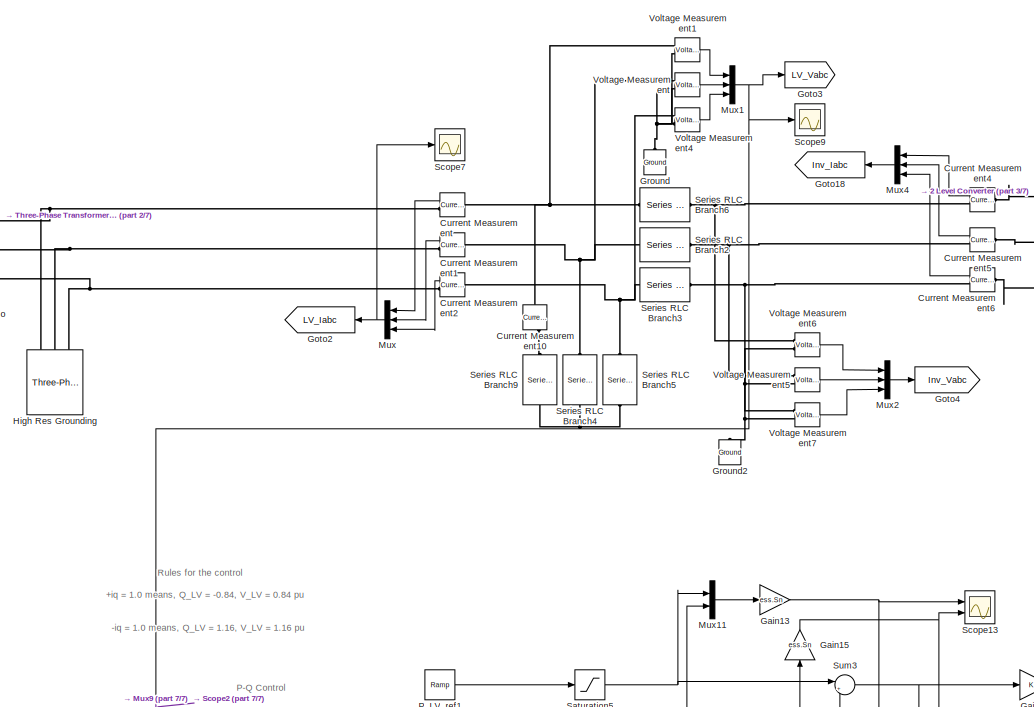
[diagram: root canvas - part 1/7, top center region]
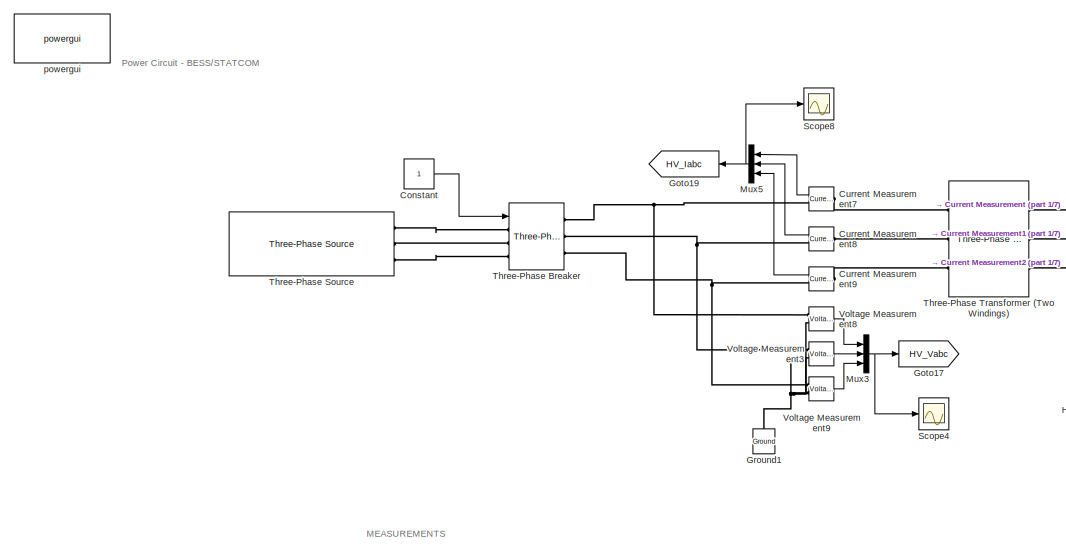
[diagram: root canvas - part 2/7, top left region]
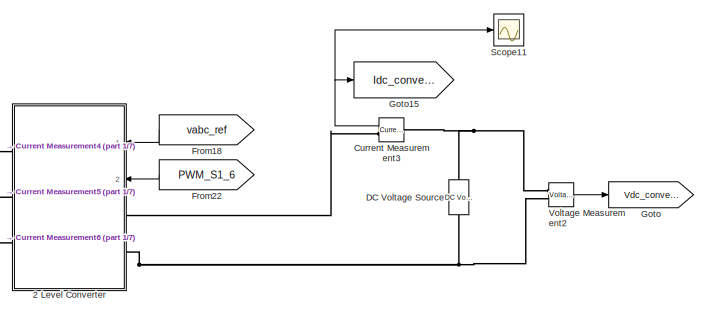
[diagram: root canvas - part 3/7, top right region]
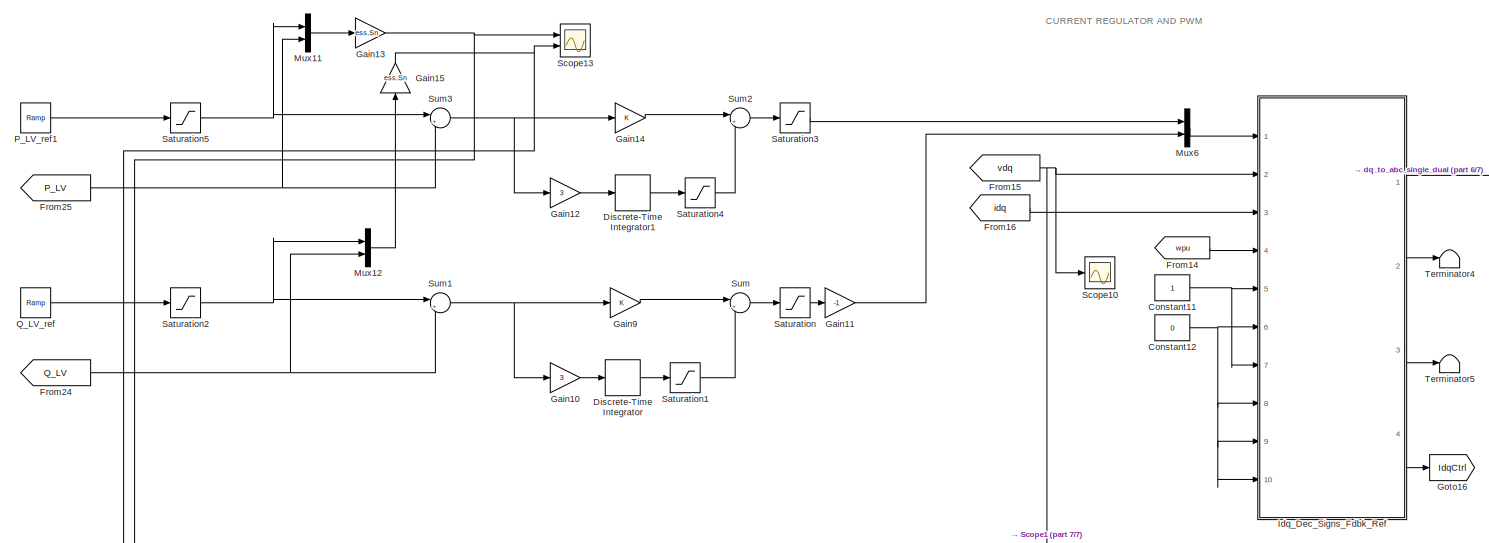
[diagram: root canvas - part 4/7, central region]
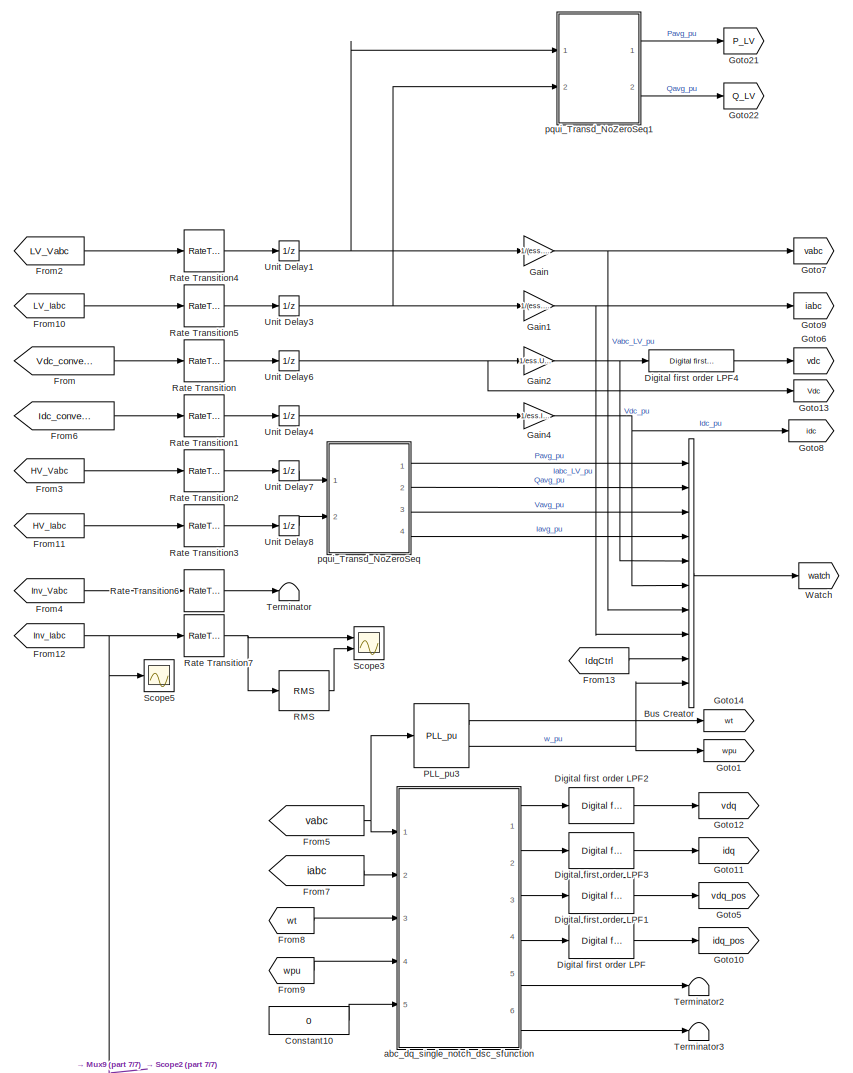
[diagram: root canvas - part 5/7, middle left region]
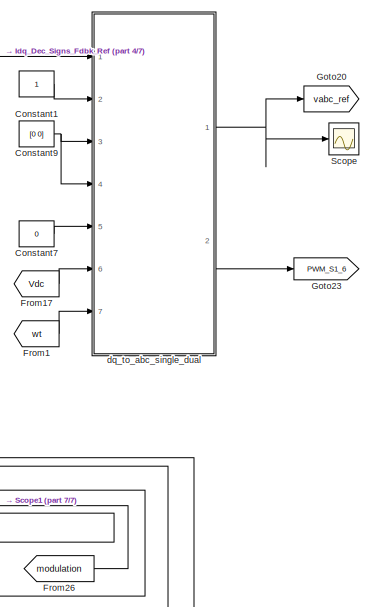
[diagram: root canvas - part 6/7, middle right region]
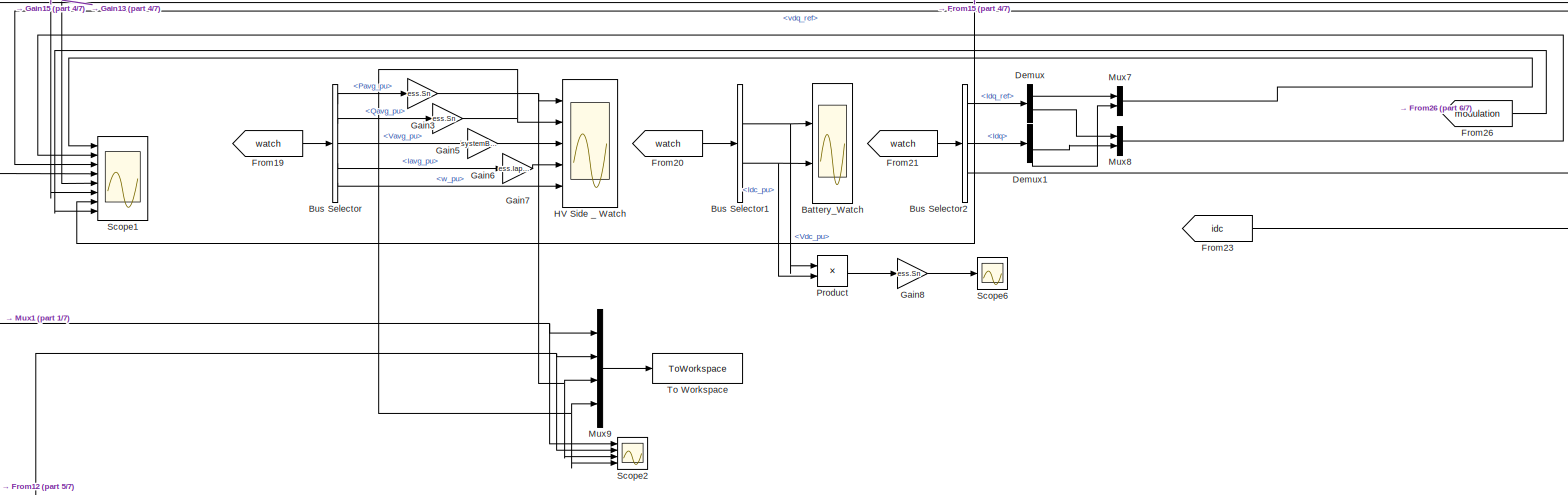
[diagram: root canvas - part 7/7, bottom right region]
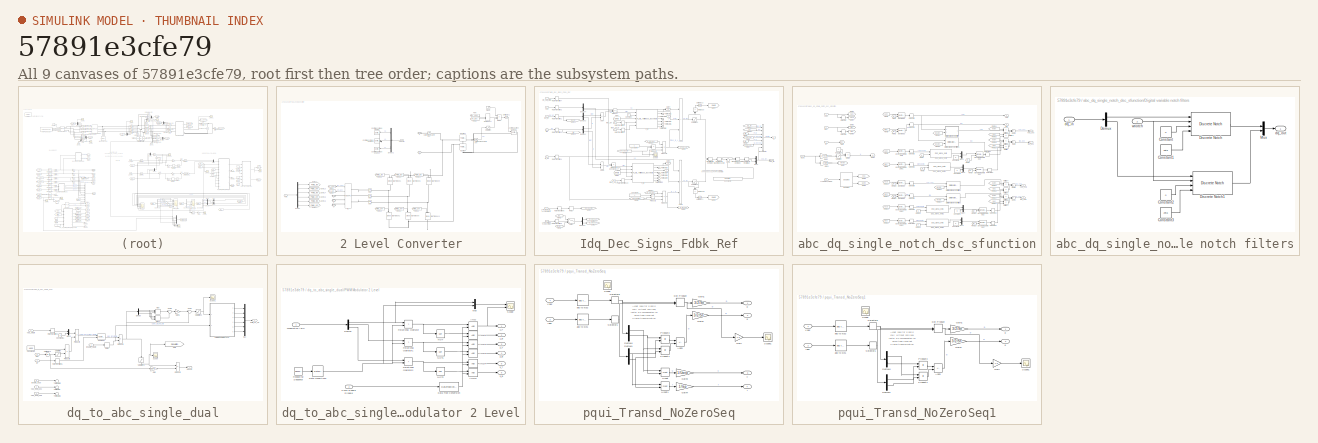
[diagram: thumbnail index - all 9 canvases of the model, root first then tree order]
MODEL slx_57891e3cfe79
KIND model
CONFIG AbsTol = auto
CONFIG EnableMultiTasking = off
CONFIG FixedStep = Tplant
CONFIG MaxStep = auto
CONFIG MinStep = auto
CONFIG RelTol = 1e-3
CONFIG SampleTimeConstraint = Unconstrained
CONFIG SolverName = FixedStepDiscrete
CONFIG StartTime = 0.0
CONFIG StopTime = 10
BLOCK [SubSystem] 2 Level Converter
  AncestorBlock = pwrsysVSrc/DCL_LSC_LCL_Trafo_NoSwitching
  Ports = [2, 0, 0, 0, 0, 2, 3]
  RequestExecContextInheritance = off
BLOCK [PMIOPort] 2 Level Converter/A
  Side = Right
BLOCK [PMIOPort] 2 Level Converter/B
  Port = 2
  Side = Right
BLOCK [PMIOPort] 2 Level Converter/C
  Port = 3
  Side = Right
BLOCK [Reference] 2 Level Converter/CM1  REF=powerlib/Measurements/Current Measurement
  Ports = [0, 1, 0, 0, 0, 1, 1]
  SourceBlock = powerlib/Measurements/Current Measurement
  SourceProductBaseCode = PS
  SourceType = Current Measurement
BLOCK [Reference] 2 Level Converter/CM2  REF=powerlib/Measurements/Current Measurement
  Ports = [0, 1, 0, 0, 0, 1, 1]
  SourceBlock = powerlib/Measurements/Current Measurement
  SourceProductBaseCode = PS
  SourceType = Current Measurement
BLOCK [Reference] 2 Level Converter/CM3  REF=powerlib/Measurements/Current Measurement
  Ports = [0, 1, 0, 0, 0, 1, 1]
  SourceBlock = powerlib/Measurements/Current Measurement
  SourceProductBaseCode = PS
  SourceType = Current Measurement
BLOCK [Reference] 2 Level Converter/Cdclink  REF=powerlib/Elements/Parallel RLC Branch
  AttributesFormatString = \n
  NameLocation = left
  Ports = [0, 0, 0, 0, 0, 1, 1]
  SourceBlock = powerlib/Elements/Parallel RLC Branch
  SourceProductBaseCode = PS
  SourceType = Parallel RLC Branch
BLOCK [Reference] 2 Level Converter/Cdclink1  REF=powerlib/Elements/Parallel RLC Branch
  AttributesFormatString = \n
  NameLocation = left
  Ports = [0, 0, 0, 0, 0, 1, 1]
  SourceBlock = powerlib/Elements/Parallel RLC Branch
  SourceProductBaseCode = PS
  SourceType = Parallel RLC Branch
BLOCK [Reference] 2 Level Converter/Controlled Current Source2  REF=powerlib/Electrical
Sources/Controlled Current Source
  Commented = on
  Ports = [1, 0, 0, 0, 0, 1, 1]
  SourceBlock = powerlib/Electrical\nSources/Controlled Current Source
  SourceProductBaseCode = PS
  SourceType = Controlled Current Source
BLOCK [Reference] 2 Level Converter/Controlled Voltage Source  REF=powerlib/Electrical
Sources/Controlled Voltage Source
  Commented = on
  Ports = [1, 0, 0, 0, 0, 1, 1]
  SourceBlock = powerlib/Electrical\nSources/Controlled Voltage Source
  SourceProductBaseCode = PS
  SourceType = Controlled Voltage Source
BLOCK [Reference] 2 Level Converter/Controlled Voltage Source1  REF=powerlib/Electrical
Sources/Controlled Voltage Source
  Commented = on
  Ports = [1, 0, 0, 0, 0, 1, 1]
  SourceBlock = powerlib/Electrical\nSources/Controlled Voltage Source
  SourceProductBaseCode = PS
  SourceType = Controlled Voltage Source
BLOCK [Reference] 2 Level Converter/Controlled Voltage Source2  REF=powerlib/Electrical
Sources/Controlled Voltage Source
  Commented = on
  Ports = [1, 0, 0, 0, 0, 1, 1]
  SourceBlock = powerlib/Electrical\nSources/Controlled Voltage Source
  SourceProductBaseCode = PS
  SourceType = Controlled Voltage Source
BLOCK [Reference] 2 Level Converter/Current Measurement  REF=powerlib/Measurements/Current Measurement
  Ports = [0, 1, 0, 0, 0, 1, 1]
  SourceBlock = powerlib/Measurements/Current Measurement
  SourceProductBaseCode = PS
  SourceType = Current Measurement
  UserDataPersistent = on
BLOCK [Demux] 2 Level Converter/Demux
  Outputs = 6
  Ports = [1, 6]
BLOCK [Demux] 2 Level Converter/Demux2
  Commented = on
  Outputs = 3
  Ports = [1, 3]
BLOCK [Product] 2 Level Converter/Divide
  Commented = on
  Inputs = **/
  Ports = [3, 1]
BLOCK [DotProduct] 2 Level Converter/Dot Product
  Commented = on
  OutDataTypeStr = Inherit: Inherit via internal rule
BLOCK [From] 2 Level Converter/From
  Commented = on
  GotoTag = INV_Vabc
BLOCK [From] 2 Level Converter/From1
  Commented = on
  GotoTag = INV_Iabc
BLOCK [From] 2 Level Converter/From18
  GotoTag = PWM1_top
BLOCK [From] 2 Level Converter/From19
  GotoTag = PWM1_bot
BLOCK [From] 2 Level Converter/From20
  GotoTag = PWM2_top
BLOCK [From] 2 Level Converter/From21
  GotoTag = PWM3_top
BLOCK [From] 2 Level Converter/From22
  GotoTag = PWM2_bot
BLOCK [From] 2 Level Converter/From23
  GotoTag = PWM3_bot
BLOCK [Goto] 2 Level Converter/Goto1
  GotoTag = INV_Vabc
BLOCK [Goto] 2 Level Converter/Goto12
  GotoTag = PWM1_top
BLOCK [Goto] 2 Level Converter/Goto13
  GotoTag = PWM1_bot
BLOCK [Goto] 2 Level Converter/Goto14
  GotoTag = PWM2_top
BLOCK [Goto] 2 Level Converter/Goto15
  GotoTag = PWM2_bot
BLOCK [Goto] 2 Level Converter/Goto16
  GotoTag = PWM3_top
BLOCK [Goto] 2 Level Converter/Goto17
  GotoTag = PWM3_bot
BLOCK [Goto] 2 Level Converter/Goto2
  GotoTag = INV_Iabc
BLOCK [Reference] 2 Level Converter/IGBT//Diode1  REF=powerlib/Power
Electronics/IGBT//Diode
  NameLocation = left
  Ports = [1, 0, 0, 0, 0, 1, 1]
  SourceBlock = powerlib/Power\nElectronics/IGBT//Diode
  SourceProductBaseCode = PS
  SourceType = IGBT/Diode
BLOCK [Reference] 2 Level Converter/IGBT//Diode10  REF=powerlib/Power
Electronics/IGBT//Diode
  NameLocation = left
  Ports = [1, 0, 0, 0, 0, 1, 1]
  SourceBlock = powerlib/Power\nElectronics/IGBT//Diode
  SourceProductBaseCode = PS
  SourceType = IGBT/Diode
BLOCK [Reference] 2 Level Converter/IGBT//Diode2  REF=powerlib/Power
Electronics/IGBT//Diode
  NameLocation = left
  Ports = [1, 0, 0, 0, 0, 1, 1]
  SourceBlock = powerlib/Power\nElectronics/IGBT//Diode
  SourceProductBaseCode = PS
  SourceType = IGBT/Diode
BLOCK [Reference] 2 Level Converter/IGBT//Diode5  REF=powerlib/Power
Electronics/IGBT//Diode
  NameLocation = left
  Ports = [1, 0, 0, 0, 0, 1, 1]
  SourceBlock = powerlib/Power\nElectronics/IGBT//Diode
  SourceProductBaseCode = PS
  SourceType = IGBT/Diode
BLOCK [Reference] 2 Level Converter/IGBT//Diode6  REF=powerlib/Power
Electronics/IGBT//Diode
  NameLocation = left
  Ports = [1, 0, 0, 0, 0, 1, 1]
  SourceBlock = powerlib/Power\nElectronics/IGBT//Diode
  SourceProductBaseCode = PS
  SourceType = IGBT/Diode
BLOCK [Reference] 2 Level Converter/IGBT//Diode9  REF=powerlib/Power
Electronics/IGBT//Diode
  NameLocation = left
  Ports = [1, 0, 0, 0, 0, 1, 1]
  SourceBlock = powerlib/Power\nElectronics/IGBT//Diode
  SourceProductBaseCode = PS
  SourceType = IGBT/Diode
BLOCK [Reference] 2 Level Converter/INV  REF=powerlib/Measurements/Three-Phase
V-I Measurement
  Ports = [0, 2, 0, 0, 0, 3, 3]
  SourceBlock = powerlib/Measurements/Three-Phase\nV-I Measurement
  SourceProductBaseCode = PS
  SourceType = Three-Phase VI Measurement
BLOCK [PMIOPort] 2 Level Converter/N
  Port = 5
  Side = Left
BLOCK [PMIOPort] 2 Level Converter/P
  Port = 4
  Side = Left
BLOCK [Inport] 2 Level Converter/PWM
  NameLocation = top
  Port = 2
BLOCK [Saturate] 2 Level Converter/Saturation
  Commented = on
  LowerLimit = 0.01*Uab*sqrt(2/3)
  UpperLimit = 10*Uab*sqrt(2/3)
BLOCK [Step] 2 Level Converter/Step6
  Commented = on
  SampleTime = Tsm
  Time = Tstart
BLOCK [UnitDelay] 2 Level Converter/Unit Delay1
  Commented = on
  HasFrameUpgradeWarning = on
  SampleTime = Tsm
BLOCK [Inport] 2 Level Converter/Vabcref
BLOCK [Reference] 2 Level Converter/Voltage Measurement  REF=powerlib/Measurements/Voltage Measurement
  Commented = on
  Ports = [0, 1, 0, 0, 0, 2]
  SourceBlock = powerlib/Measurements/Voltage Measurement
  SourceProductBaseCode = PS
  SourceType = Voltage Measurement
  UserDataPersistent = on
BLOCK [Scope] Battery_Watch
  Floating = off
  NumInputPorts = 2
  Ports = [2]
  ScopeSpecificationString = Simulink.scopes.TimeScopeBlockCfg('CurrentConfiguration', extmgr.ConfigurationSet(extmgr.Configuration('Core','General UI',true),extmgr.Configuration('Core','Source UI',true),extmgr.Configuration('Sources','WiredSimulink',true,'DataLoggingVariableName','ScopeData2'),extmgr.Configuration('Visuals','Time Domain',true,'SerializedDisplays',{struct('MinYLimReal','-0.12398','MaxYLimReal','1.12489','YLab...<+2030ch>
BLOCK [BusCreator] Bus Creator
  DisplayOption = bar
  InheritFromInputs = on
  Inputs = 10
  Ports = [10, 1]
BLOCK [BusSelector] Bus Selector
  OutputSignals = Pavg_pu,Qavg_pu,Vavg_pu,Iavg_pu,w_pu
  Ports = [1, 5]
BLOCK [BusSelector] Bus Selector1
  OutputSignals = Vdc_pu,Idc_pu
  Ports = [1, 2]
BLOCK [BusSelector] Bus Selector2
  OutputSignals = IdqCtrl.Idq_ref,IdqCtrl.Idq,IdqCtrl.vdq_ref
  Ports = [1, 3]
BLOCK [Constant] Constant
BLOCK [Constant] Constant1
  SampleTime = ess.Ts_control
BLOCK [Constant] Constant10
  SampleTime = ess.Ts_control
  Value = 0
BLOCK [Constant] Constant11
  SampleTime = ess.Ts_control
BLOCK [Constant] Constant12
  SampleTime = ess.Ts_control
  Value = 0
BLOCK [Constant] Constant7
  SampleTime = ess.Ts_control
  Value = 0
BLOCK [Constant] Constant9
  SampleTime = ess.Ts_control
  Value = [0 0]
BLOCK [Reference] Current Measurement  REF=powerlib/Measurements/Current Measurement
  NameLocation = top
  Ports = [0, 1, 0, 0, 0, 1, 1]
  SourceBlock = powerlib/Measurements/Current Measurement
  SourceProductBaseCode = PS
  SourceType = Current Measurement
  UserDataPersistent = on
BLOCK [Reference] Current Measurement1  REF=powerlib/Measurements/Current Measurement
  NameLocation = top
  Ports = [0, 1, 0, 0, 0, 1, 1]
  SourceBlock = powerlib/Measurements/Current Measurement
  SourceProductBaseCode = PS
  SourceType = Current Measurement
  UserDataPersistent = on
BLOCK [Reference] Current Measurement10  REF=powerlib/Measurements/Current Measurement
  NameLocation = left
  Ports = [0, 1, 0, 0, 0, 1, 1]
  SourceBlock = powerlib/Measurements/Current Measurement
  SourceProductBaseCode = PS
  SourceType = Current Measurement
  UserDataPersistent = on
BLOCK [Reference] Current Measurement2  REF=powerlib/Measurements/Current Measurement
  NameLocation = top
  Ports = [0, 1, 0, 0, 0, 1, 1]
  SourceBlock = powerlib/Measurements/Current Measurement
  SourceProductBaseCode = PS
  SourceType = Current Measurement
  UserDataPersistent = on
BLOCK [Reference] Current Measurement3  REF=powerlib/Measurements/Current Measurement
  NameLocation = top
  Ports = [0, 1, 0, 0, 0, 1, 1]
  SourceBlock = powerlib/Measurements/Current Measurement
  SourceProductBaseCode = PS
  SourceType = Current Measurement
  UserDataPersistent = on
BLOCK [Reference] Current Measurement4  REF=powerlib/Measurements/Current Measurement
  NameLocation = top
  Ports = [0, 1, 0, 0, 0, 1, 1]
  SourceBlock = powerlib/Measurements/Current Measurement
  SourceProductBaseCode = PS
  SourceType = Current Measurement
  UserDataPersistent = on
BLOCK [Reference] Current Measurement5  REF=powerlib/Measurements/Current Measurement
  NameLocation = top
  Ports = [0, 1, 0, 0, 0, 1, 1]
  SourceBlock = powerlib/Measurements/Current Measurement
  SourceProductBaseCode = PS
  SourceType = Current Measurement
  UserDataPersistent = on
BLOCK [Reference] Current Measurement6  REF=powerlib/Measurements/Current Measurement
  NameLocation = top
  Ports = [0, 1, 0, 0, 0, 1, 1]
  SourceBlock = powerlib/Measurements/Current Measurement
  SourceProductBaseCode = PS
  SourceType = Current Measurement
  UserDataPersistent = on
BLOCK [Reference] Current Measurement7  REF=powerlib/Measurements/Current Measurement
  NameLocation = top
  Ports = [0, 1, 0, 0, 0, 1, 1]
  SourceBlock = powerlib/Measurements/Current Measurement
  SourceProductBaseCode = PS
  SourceType = Current Measurement
  UserDataPersistent = on
BLOCK [Reference] Current Measurement8  REF=powerlib/Measurements/Current Measurement
  NameLocation = top
  Ports = [0, 1, 0, 0, 0, 1, 1]
  SourceBlock = powerlib/Measurements/Current Measurement
  SourceProductBaseCode = PS
  SourceType = Current Measurement
  UserDataPersistent = on
BLOCK [Reference] Current Measurement9  REF=powerlib/Measurements/Current Measurement
  NameLocation = top
  Ports = [0, 1, 0, 0, 0, 1, 1]
  SourceBlock = powerlib/Measurements/Current Measurement
  SourceProductBaseCode = PS
  SourceType = Current Measurement
  UserDataPersistent = on
BLOCK [Reference] DC Voltage Source  REF=powerlib/Electrical
Sources/DC Voltage Source
  NameLocation = right
  Ports = [0, 0, 0, 0, 0, 1, 1]
  SourceBlock = powerlib/Electrical\nSources/DC Voltage Source
  SourceProductBaseCode = PS
  SourceType = DC Voltage Source
BLOCK [Demux] Demux
  Outputs = 2
  Ports = [1, 2]
BLOCK [Demux] Demux1
  Outputs = 2
  Ports = [1, 2]
BLOCK [Reference] Digital first order LPF  REF=pwrsysBasic/Digital first order LPF
  Ports = [1, 1]
  SourceBlock = pwrsysBasic/Digital first order LPF
  SourceProductName = NTNU Power Systems
  SourceType = Digital first-order low-pass filter
BLOCK [Reference] Digital first order LPF1  REF=pwrsysBasic/Digital first order LPF
  Ports = [1, 1]
  SourceBlock = pwrsysBasic/Digital first order LPF
  SourceProductName = NTNU Power Systems
  SourceType = Digital first-order low-pass filter
BLOCK [Reference] Digital first order LPF2  REF=pwrsysBasic/Digital first order LPF
  Ports = [1, 1]
  SourceBlock = pwrsysBasic/Digital first order LPF
  SourceProductName = NTNU Power Systems
  SourceType = Digital first-order low-pass filter
BLOCK [Reference] Digital first order LPF3  REF=pwrsysBasic/Digital first order LPF
  Ports = [1, 1]
  SourceBlock = pwrsysBasic/Digital first order LPF
  SourceProductName = NTNU Power Systems
  SourceType = Digital first-order low-pass filter
BLOCK [Reference] Digital first order LPF4  REF=pwrsysBasic/Digital first order LPF
  Ports = [1, 1]
  SourceBlock = pwrsysBasic/Digital first order LPF
  SourceProductName = NTNU Power Systems
  SourceType = Digital first-order low-pass filter
BLOCK [DiscreteIntegrator] Discrete-Time Integrator
  ICPrevOutput = DiscIntNeverNeededParam
  ICPrevScaledInput = DiscIntNeverNeededParam
  InitialConditionSetting = Auto
  Ports = [1, 1]
  SampleTime = -1
BLOCK [DiscreteIntegrator] Discrete-Time Integrator1
  ICPrevOutput = DiscIntNeverNeededParam
  ICPrevScaledInput = DiscIntNeverNeededParam
  InitialConditionSetting = Auto
  Ports = [1, 1]
  SampleTime = -1
BLOCK [From] From
  GotoTag = Vdc_converter
BLOCK [From] From1
  GotoTag = wt
BLOCK [From] From10
  GotoTag = LV_Iabc
BLOCK [From] From11
  GotoTag = HV_Iabc
BLOCK [From] From12
  GotoTag = Inv_Iabc
BLOCK [From] From13
  GotoTag = IdqCtrl
BLOCK [From] From14
  GotoTag = wpu
BLOCK [From] From15
  GotoTag = vdq
BLOCK [From] From16
  GotoTag = idq
BLOCK [From] From17
  GotoTag = Vdc
BLOCK [From] From18
  GotoTag = vabc_ref
  NameLocation = top
BLOCK [From] From19
  GotoTag = watch
BLOCK [From] From2
  GotoTag = LV_Vabc
BLOCK [From] From20
  GotoTag = watch
BLOCK [From] From21
  GotoTag = watch
BLOCK [From] From22
  GotoTag = PWM_S1_6
  NameLocation = top
BLOCK [From] From23
  GotoTag = idc
BLOCK [From] From24
  GotoTag = Q_LV
BLOCK [From] From25
  GotoTag = P_LV
BLOCK [From] From26
  GotoTag = modulation
  TagVisibility = global
BLOCK [From] From3
  GotoTag = HV_Vabc
BLOCK [From] From4
  GotoTag = Inv_Vabc
BLOCK [From] From5
  GotoTag = vabc
BLOCK [From] From6
  GotoTag = Idc_converter
BLOCK [From] From7
  GotoTag = iabc
BLOCK [From] From8
  GotoTag = wt
BLOCK [From] From9
  GotoTag = wpu
BLOCK [Gain] Gain
  Gain = 1/(ess.Uanp)
BLOCK [Gain] Gain1
  Gain = 1/(ess.Iap)
BLOCK [Gain] Gain10
  Gain = 3
BLOCK [Gain] Gain11
  Gain = -1
BLOCK [Gain] Gain12
  Gain = 3
BLOCK [Gain] Gain13
  Gain = ess.Sn
BLOCK [Gain] Gain14
BLOCK [Gain] Gain15
  Gain = ess.Sn
  NameLocation = right
BLOCK [Gain] Gain2
  Gain = 1/ess.Udc
BLOCK [Gain] Gain3
  Gain = ess.Sn
BLOCK [Gain] Gain4
  Gain = 1/ess.Idc
BLOCK [Gain] Gain5
  Gain = ess.Sn
BLOCK [Gain] Gain6
  Gain = systemBase.Vn*(2/3)^0.5
BLOCK [Gain] Gain7
  Gain = ess.Iap*(ess.Un/systemBase.Vn)
BLOCK [Gain] Gain8
  Gain = ess.Sn
BLOCK [Gain] Gain9
BLOCK [Goto] Goto
  GotoTag = Vdc_converter
BLOCK [Goto] Goto1
  GotoTag = wpu
BLOCK [Goto] Goto10
  GotoTag = idq_pos
BLOCK [Goto] Goto11
  GotoTag = idq
BLOCK [Goto] Goto12
  GotoTag = vdq
BLOCK [Goto] Goto13
  GotoTag = Vdc
BLOCK [Goto] Goto14
  GotoTag = wt
BLOCK [Goto] Goto15
  GotoTag = Idc_converter
BLOCK [Goto] Goto16
  GotoTag = IdqCtrl
BLOCK [Goto] Goto17
  GotoTag = HV_Vabc
BLOCK [Goto] Goto18
  GotoTag = Inv_Iabc
  NameLocation = top
BLOCK [Goto] Goto19
  GotoTag = HV_Iabc
  NameLocation = top
BLOCK [Goto] Goto2
  GotoTag = LV_Iabc
  NameLocation = top
BLOCK [Goto] Goto20
  GotoTag = vabc_ref
BLOCK [Goto] Goto21
  GotoTag = P_LV
BLOCK [Goto] Goto22
  GotoTag = Q_LV
BLOCK [Goto] Goto23
  GotoTag = PWM_S1_6
BLOCK [Goto] Goto3
  GotoTag = LV_Vabc
BLOCK [Goto] Goto4
  GotoTag = Inv_Vabc
BLOCK [Goto] Goto5
  GotoTag = vdq_pos
BLOCK [Goto] Goto6
  GotoTag = vdc
BLOCK [Goto] Goto7
  GotoTag = vabc
BLOCK [Goto] Goto8
  GotoTag = idc
BLOCK [Goto] Goto9
  GotoTag = iabc
BLOCK [Reference] Ground  REF=powerlib/Elements/Ground
  NameLocation = right
  Ports = [0, 0, 0, 0, 0, 1]
  SourceBlock = powerlib/Elements/Ground
  SourceProductBaseCode = PS
  SourceType = Ground
BLOCK [Reference] Ground1  REF=powerlib/Elements/Ground
  NameLocation = right
  Ports = [0, 0, 0, 0, 0, 1]
  SourceBlock = powerlib/Elements/Ground
  SourceProductBaseCode = PS
  SourceType = Ground
BLOCK [Reference] Ground2  REF=powerlib/Elements/Ground
  NameLocation = right
  Ports = [0, 0, 0, 0, 0, 1]
  SourceBlock = powerlib/Elements/Ground
  SourceProductBaseCode = PS
  SourceType = Ground
BLOCK [Scope] HV Side _ Watch
  Floating = off
  NumInputPorts = 5
  Ports = [5]
  ScopeSpecificationString = Simulink.scopes.TimeScopeBlockCfg('CurrentConfiguration', extmgr.ConfigurationSet(extmgr.Configuration('Core','General UI',true),extmgr.Configuration('Core','Source UI',true),extmgr.Configuration('Sources','WiredSimulink',true,'DataLoggingVariableName','ScopeData1'),extmgr.Configuration('Visuals','Time Domain',true,'SerializedDisplays',{struct('MinYLimReal','-5660352.19508','MaxYLimReal','6022084....<+4822ch>
BLOCK [Reference] High Res Grounding  REF=powerlib/Elements/Three-Phase
Parallel RLC Load
  AttributesFormatString = \n
  NameLocation = right
  Ports = [0, 0, 0, 0, 0, 3]
  SourceBlock = powerlib/Elements/Three-Phase\nParallel RLC Load
  SourceProductBaseCode = PS
  SourceType = Three-Phase Parallel RLC Load
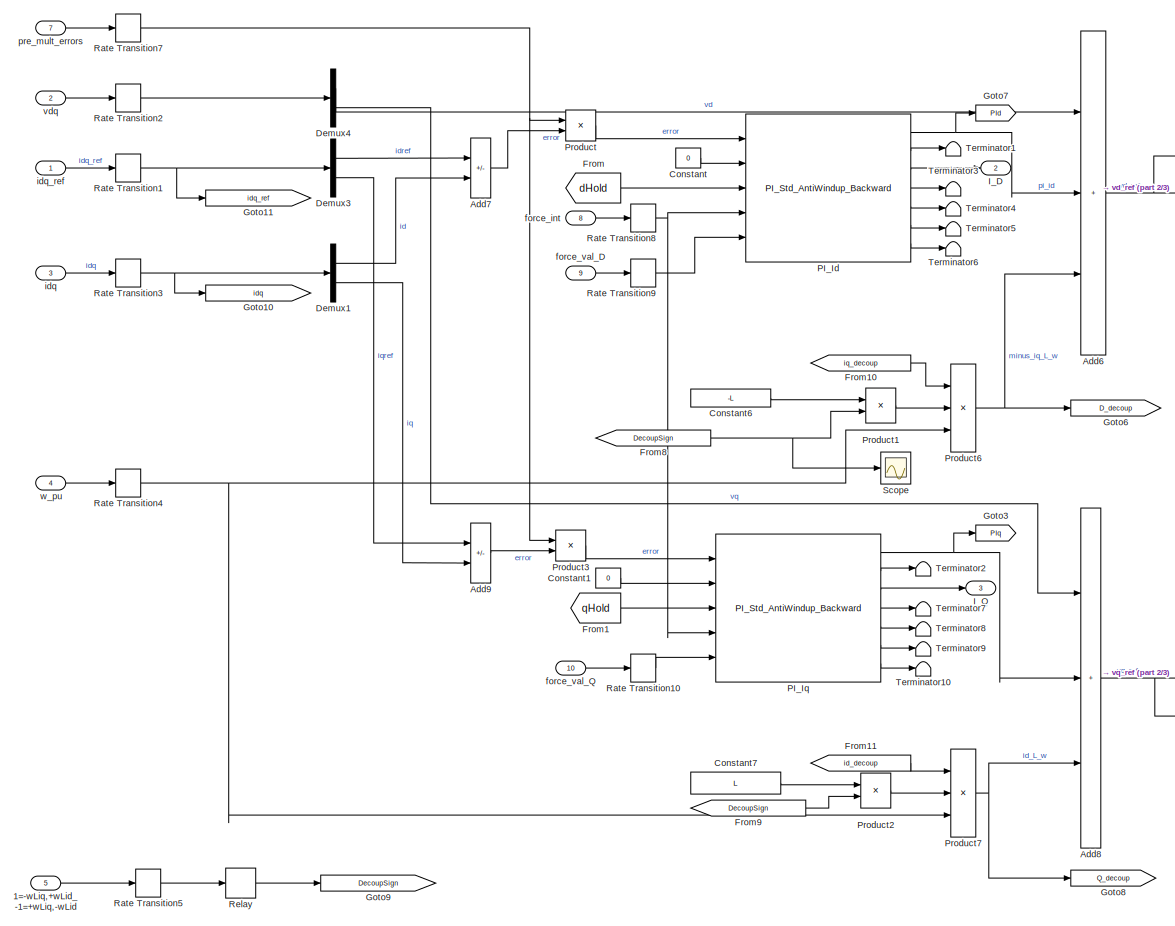
[diagram: Idq_Dec_Signs_Fdbk_Ref - part 1/3, left side, full height]
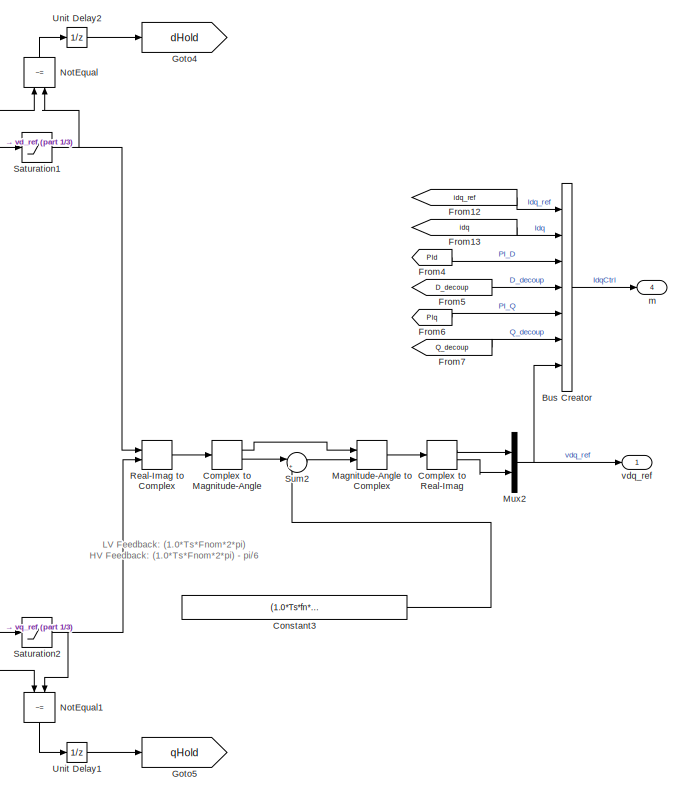
[diagram: Idq_Dec_Signs_Fdbk_Ref - part 2/3, right side, full height]
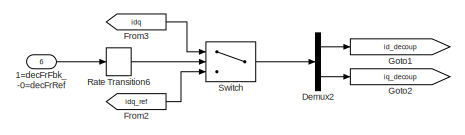
[diagram: Idq_Dec_Signs_Fdbk_Ref - part 3/3, bottom left region]
BLOCK [SubSystem] Idq_Dec_Signs_Fdbk_Ref
  AncestorBlock = pwrsysVICtrl/Idq_Dec_Signs_Fdbk_Ref
  Ports = [10, 4]
  RequestExecContextInheritance = off
BLOCK [Inport] Idq_Dec_Signs_Fdbk_Ref/1=-wLiq,+wLid_-1=+wLiq,-wLid
  Port = 5
BLOCK [Inport] Idq_Dec_Signs_Fdbk_Ref/1=decFrFbk_-0=decFrRef
  Port = 6
BLOCK [Sum] Idq_Dec_Signs_Fdbk_Ref/Add6
  IconShape = rectangular
  Inputs = +++
  Ports = [3, 1]
BLOCK [Sum] Idq_Dec_Signs_Fdbk_Ref/Add7
  IconShape = rectangular
  Inputs = +-
  Ports = [2, 1]
BLOCK [Sum] Idq_Dec_Signs_Fdbk_Ref/Add8
  IconShape = rectangular
  Inputs = +++
  Ports = [3, 1]
BLOCK [Sum] Idq_Dec_Signs_Fdbk_Ref/Add9
  IconShape = rectangular
  Inputs = +-
  Ports = [2, 1]
BLOCK [BusCreator] Idq_Dec_Signs_Fdbk_Ref/Bus Creator
  DisplayOption = bar
  InheritFromInputs = on
  Inputs = 7
  Ports = [7, 1]
BLOCK [ComplexToMagnitudeAngle] Idq_Dec_Signs_Fdbk_Ref/Complex to Magnitude-Angle
  Ports = [1, 2]
BLOCK [ComplexToRealImag] Idq_Dec_Signs_Fdbk_Ref/Complex to Real-Imag
  Ports = [1, 2]
BLOCK [Constant] Idq_Dec_Signs_Fdbk_Ref/Constant
  SampleTime = Ts
  Value = 0
BLOCK [Constant] Idq_Dec_Signs_Fdbk_Ref/Constant1
  SampleTime = Ts
  Value = 0
BLOCK [Constant] Idq_Dec_Signs_Fdbk_Ref/Constant3
  SampleTime = Ts
  Value = (1.0*Ts*fn*2*pi+TrafoPhaseComp)
BLOCK [Constant] Idq_Dec_Signs_Fdbk_Ref/Constant6
  SampleTime = Ts
  Value = -L
BLOCK [Constant] Idq_Dec_Signs_Fdbk_Ref/Constant7
  SampleTime = Ts
  Value = L
BLOCK [Demux] Idq_Dec_Signs_Fdbk_Ref/Demux1
  Outputs = 2
  Ports = [1, 2]
BLOCK [Demux] Idq_Dec_Signs_Fdbk_Ref/Demux2
  Outputs = 2
  Ports = [1, 2]
BLOCK [Demux] Idq_Dec_Signs_Fdbk_Ref/Demux3
  Outputs = 2
  Ports = [1, 2]
BLOCK [Demux] Idq_Dec_Signs_Fdbk_Ref/Demux4
  Outputs = 2
  Ports = [1, 2]
BLOCK [From] Idq_Dec_Signs_Fdbk_Ref/From
  GotoTag = dHold
BLOCK [From] Idq_Dec_Signs_Fdbk_Ref/From1
  GotoTag = qHold
BLOCK [From] Idq_Dec_Signs_Fdbk_Ref/From10
  GotoTag = iq_decoup
BLOCK [From] Idq_Dec_Signs_Fdbk_Ref/From11
  GotoTag = id_decoup
BLOCK [From] Idq_Dec_Signs_Fdbk_Ref/From12
  GotoTag = idq_ref
BLOCK [From] Idq_Dec_Signs_Fdbk_Ref/From13
  GotoTag = idq
BLOCK [From] Idq_Dec_Signs_Fdbk_Ref/From2
  GotoTag = idq_ref
BLOCK [From] Idq_Dec_Signs_Fdbk_Ref/From3
  GotoTag = idq
BLOCK [From] Idq_Dec_Signs_Fdbk_Ref/From4
  GotoTag = PId
BLOCK [From] Idq_Dec_Signs_Fdbk_Ref/From5
  GotoTag = D_decoup
BLOCK [From] Idq_Dec_Signs_Fdbk_Ref/From6
  GotoTag = PIq
BLOCK [From] Idq_Dec_Signs_Fdbk_Ref/From7
  GotoTag = Q_decoup
BLOCK [From] Idq_Dec_Signs_Fdbk_Ref/From8
  GotoTag = DecoupSign
BLOCK [From] Idq_Dec_Signs_Fdbk_Ref/From9
  GotoTag = DecoupSign
BLOCK [Goto] Idq_Dec_Signs_Fdbk_Ref/Goto1
  GotoTag = id_decoup
BLOCK [Goto] Idq_Dec_Signs_Fdbk_Ref/Goto10
  GotoTag = idq
BLOCK [Goto] Idq_Dec_Signs_Fdbk_Ref/Goto11
  GotoTag = idq_ref
  NameLocation = top
BLOCK [Goto] Idq_Dec_Signs_Fdbk_Ref/Goto2
  GotoTag = iq_decoup
BLOCK [Goto] Idq_Dec_Signs_Fdbk_Ref/Goto3
  GotoTag = PIq
BLOCK [Goto] Idq_Dec_Signs_Fdbk_Ref/Goto4
  GotoTag = dHold
BLOCK [Goto] Idq_Dec_Signs_Fdbk_Ref/Goto5
  GotoTag = qHold
BLOCK [Goto] Idq_Dec_Signs_Fdbk_Ref/Goto6
  GotoTag = D_decoup
BLOCK [Goto] Idq_Dec_Signs_Fdbk_Ref/Goto7
  GotoTag = PId
BLOCK [Goto] Idq_Dec_Signs_Fdbk_Ref/Goto8
  GotoTag = Q_decoup
BLOCK [Goto] Idq_Dec_Signs_Fdbk_Ref/Goto9
  GotoTag = DecoupSign
BLOCK [Outport] Idq_Dec_Signs_Fdbk_Ref/I_D
  Port = 2
BLOCK [Outport] Idq_Dec_Signs_Fdbk_Ref/I_Q
  Port = 3
BLOCK [MagnitudeAngleToComplex] Idq_Dec_Signs_Fdbk_Ref/Magnitude-Angle to Complex
  Ports = [2, 1]
BLOCK [Mux] Idq_Dec_Signs_Fdbk_Ref/Mux2
  DisplayOption = bar
  Inputs = 2
  Ports = [2, 1]
BLOCK [RelationalOperator] Idq_Dec_Signs_Fdbk_Ref/NotEqual
  InputSameDT = off
  NameLocation = right
  Operator = ~=
  OutDataTypeStr = boolean
  Ports = [2, 1]
BLOCK [RelationalOperator] Idq_Dec_Signs_Fdbk_Ref/NotEqual1
  InputSameDT = off
  NameLocation = left
  Operator = ~=
  OutDataTypeStr = boolean
  Ports = [2, 1]
BLOCK [Reference] Idq_Dec_Signs_Fdbk_Ref/PI_Id  REF=pwrsysBasic/PI_Std_AntiWindup_Backward
  Ports = [5, 7]
  SourceBlock = pwrsysBasic/PI_Std_AntiWindup_Backward
  SourceProductName = NTNU Power Systems
  SourceType = PI regulator with anti-windup
BLOCK [Reference] Idq_Dec_Signs_Fdbk_Ref/PI_Iq  REF=pwrsysBasic/PI_Std_AntiWindup_Backward
  Ports = [5, 7]
  SourceBlock = pwrsysBasic/PI_Std_AntiWindup_Backward
  SourceProductName = NTNU Power Systems
  SourceType = PI regulator with anti-windup
BLOCK [Product] Idq_Dec_Signs_Fdbk_Ref/Product
  Ports = [2, 1]
BLOCK [Product] Idq_Dec_Signs_Fdbk_Ref/Product1
  Ports = [2, 1]
  RndMeth = Zero
BLOCK [Product] Idq_Dec_Signs_Fdbk_Ref/Product2
  Ports = [2, 1]
  RndMeth = Zero
BLOCK [Product] Idq_Dec_Signs_Fdbk_Ref/Product3
  Ports = [2, 1]
BLOCK [Product] Idq_Dec_Signs_Fdbk_Ref/Product6
  Inputs = 3
  Ports = [3, 1]
  RndMeth = Zero
BLOCK [Product] Idq_Dec_Signs_Fdbk_Ref/Product7
  Inputs = 3
  Ports = [3, 1]
  RndMeth = Zero
BLOCK [RateTransition] Idq_Dec_Signs_Fdbk_Ref/Rate Transition1
  InitialCondition = [0 0]
  OutPortSampleTime = Ts
BLOCK [RateTransition] Idq_Dec_Signs_Fdbk_Ref/Rate Transition10
  OutPortSampleTime = Ts
BLOCK [RateTransition] Idq_Dec_Signs_Fdbk_Ref/Rate Transition2
  InitialCondition = [0 0]
  OutPortSampleTime = Ts
BLOCK [RateTransition] Idq_Dec_Signs_Fdbk_Ref/Rate Transition3
  InitialCondition = [0 0]
  OutPortSampleTime = Ts
BLOCK [RateTransition] Idq_Dec_Signs_Fdbk_Ref/Rate Transition4
  InitialCondition = 1
  OutPortSampleTime = Ts
BLOCK [RateTransition] Idq_Dec_Signs_Fdbk_Ref/Rate Transition5
  InitialCondition = 1
  OutPortSampleTime = Ts
BLOCK [RateTransition] Idq_Dec_Signs_Fdbk_Ref/Rate Transition6
  OutPortSampleTime = Ts
BLOCK [RateTransition] Idq_Dec_Signs_Fdbk_Ref/Rate Transition7
  OutPortSampleTime = Ts
BLOCK [RateTransition] Idq_Dec_Signs_Fdbk_Ref/Rate Transition8
  OutPortSampleTime = Ts
BLOCK [RateTransition] Idq_Dec_Signs_Fdbk_Ref/Rate Transition9
  OutPortSampleTime = Ts
BLOCK [RealImagToComplex] Idq_Dec_Signs_Fdbk_Ref/Real-Imag to Complex
  Ports = [2, 1]
BLOCK [Relay] Idq_Dec_Signs_Fdbk_Ref/Relay
  OffOutputValue = -1
  OffSwitchValue = -0.1
  OnSwitchValue = 0
BLOCK [Saturate] Idq_Dec_Signs_Fdbk_Ref/Saturation1
  LowerLimit = PI_min
  UpperLimit = PI_max
BLOCK [Saturate] Idq_Dec_Signs_Fdbk_Ref/Saturation2
  LowerLimit = PI_min
  UpperLimit = PI_max
BLOCK [Scope] Idq_Dec_Signs_Fdbk_Ref/Scope
  Floating = off
  NumInputPorts = 1
  Ports = [1]
  ScopeSpecificationString = Simulink.scopes.TimeScopeBlockCfg('CurrentConfiguration', extmgr.ConfigurationSet(extmgr.Configuration('Core','General UI',true),extmgr.Configuration('Core','Source UI',true),extmgr.Configuration('Sources','WiredSimulink',true,'DataLoggingVariableName','ScopeData1'),extmgr.Configuration('Visuals','Time Domain',true,'SerializedDisplays',{struct('MinYLimReal','0.98443','MaxYLimReal','1.00683','YLabe...<+1381ch>
BLOCK [Sum] Idq_Dec_Signs_Fdbk_Ref/Sum2
  Inputs = |++
  Ports = [2, 1]
BLOCK [Switch] Idq_Dec_Signs_Fdbk_Ref/Switch
  Criteria = u2 > Threshold
  InputSameDT = off
  SaturateOnIntegerOverflow = off
  Threshold = 0.5
BLOCK [Terminator] Idq_Dec_Signs_Fdbk_Ref/Terminator1
BLOCK [Terminator] Idq_Dec_Signs_Fdbk_Ref/Terminator10
BLOCK [Terminator] Idq_Dec_Signs_Fdbk_Ref/Terminator2
BLOCK [Terminator] Idq_Dec_Signs_Fdbk_Ref/Terminator3
BLOCK [Terminator] Idq_Dec_Signs_Fdbk_Ref/Terminator4
BLOCK [Terminator] Idq_Dec_Signs_Fdbk_Ref/Terminator5
BLOCK [Terminator] Idq_Dec_Signs_Fdbk_Ref/Terminator6
BLOCK [Terminator] Idq_Dec_Signs_Fdbk_Ref/Terminator7
BLOCK [Terminator] Idq_Dec_Signs_Fdbk_Ref/Terminator8
BLOCK [Terminator] Idq_Dec_Signs_Fdbk_Ref/Terminator9
BLOCK [UnitDelay] Idq_Dec_Signs_Fdbk_Ref/Unit Delay1
  HasFrameUpgradeWarning = on
  SampleTime = Ts
BLOCK [UnitDelay] Idq_Dec_Signs_Fdbk_Ref/Unit Delay2
  HasFrameUpgradeWarning = on
  SampleTime = Ts
BLOCK [Inport] Idq_Dec_Signs_Fdbk_Ref/force_int
  Port = 8
BLOCK [Inport] Idq_Dec_Signs_Fdbk_Ref/force_val_D
  Port = 9
BLOCK [Inport] Idq_Dec_Signs_Fdbk_Ref/force_val_Q
  Port = 10
BLOCK [Inport] Idq_Dec_Signs_Fdbk_Ref/idq
  Port = 3
BLOCK [Inport] Idq_Dec_Signs_Fdbk_Ref/idq_ref
BLOCK [Outport] Idq_Dec_Signs_Fdbk_Ref/m
  Port = 4
BLOCK [Inport] Idq_Dec_Signs_Fdbk_Ref/pre_mult_errors
  Port = 7
BLOCK [Inport] Idq_Dec_Signs_Fdbk_Ref/vdq
  Port = 2
BLOCK [Outport] Idq_Dec_Signs_Fdbk_Ref/vdq_ref
BLOCK [Inport] Idq_Dec_Signs_Fdbk_Ref/w_pu
  Port = 4
BLOCK [Mux] Mux
  DisplayOption = bar
  Inputs = 3
  NameLocation = top
  Ports = [3, 1]
BLOCK [Mux] Mux1
  DisplayOption = bar
  Inputs = 3
  Ports = [3, 1]
BLOCK [Mux] Mux11
  DisplayOption = bar
  Inputs = 2
  Ports = [2, 1]
BLOCK [Mux] Mux12
  DisplayOption = bar
  Inputs = 2
  Ports = [2, 1]
BLOCK [Mux] Mux2
  DisplayOption = bar
  Inputs = 3
  Ports = [3, 1]
BLOCK [Mux] Mux3
  DisplayOption = bar
  Inputs = 3
  Ports = [3, 1]
BLOCK [Mux] Mux4
  DisplayOption = bar
  Inputs = 3
  NameLocation = top
  Ports = [3, 1]
BLOCK [Mux] Mux5
  DisplayOption = bar
  Inputs = 3
  NameLocation = top
  Ports = [3, 1]
BLOCK [Mux] Mux6
  DisplayOption = bar
  Inputs = 2
  Ports = [2, 1]
BLOCK [Mux] Mux7
  DisplayOption = bar
  Inputs = 2
  Ports = [2, 1]
BLOCK [Mux] Mux8
  DisplayOption = bar
  Inputs = 2
  Ports = [2, 1]
BLOCK [Mux] Mux9
  DisplayOption = bar
  Ports = [4, 1]
BLOCK [Reference] PLL_pu3  REF=pwrsysBasic/PLL_pu
  Ports = [1, 2]
  SourceBlock = pwrsysBasic/PLL_pu
  SourceProductName = NTNU Power Systems
  SourceType = Matlabs PLL with POS and NEG omega t output
BLOCK [Reference] P_LV_ref1  REF=simulink/Sources/Ramp
  Ports = [0, 1]
  SourceBlock = simulink/Sources/Ramp
  SourceProductBaseCode = SL
  SourceType = Ramp
BLOCK [Product] Product
  Ports = [2, 1]
BLOCK [Reference] Q_LV_ref  REF=simulink/Sources/Ramp
  Ports = [0, 1]
  SourceBlock = simulink/Sources/Ramp
  SourceProductBaseCode = SL
  SourceType = Ramp
BLOCK [Reference] RMS  REF=powerlib_meascontrol/Measurements/RMS
  Ports = [1, 1]
  SourceBlock = powerlib_meascontrol/Measurements/RMS
  SourceProductBaseCode = PS
  SourceType = RMS
BLOCK [RateTransition] Rate Transition
  OutPortSampleTime = ess.Ts_control
BLOCK [RateTransition] Rate Transition1
  OutPortSampleTime = ess.Ts_control
BLOCK [RateTransition] Rate Transition2
  OutPortSampleTime = ess.Ts_control
BLOCK [RateTransition] Rate Transition3
  OutPortSampleTime = ess.Ts_control
BLOCK [RateTransition] Rate Transition4
  OutPortSampleTime = ess.Ts_control
BLOCK [RateTransition] Rate Transition5
  OutPortSampleTime = ess.Ts_control
BLOCK [RateTransition] Rate Transition6
  OutPortSampleTime = ess.Ts_control
BLOCK [RateTransition] Rate Transition7
  OutPortSampleTime = ess.Ts_control
BLOCK [Saturate] Saturation
  LowerLimit = -1
  UpperLimit = 1
BLOCK [Saturate] Saturation1
  LowerLimit = -1
  UpperLimit = 1
BLOCK [Saturate] Saturation2
  LowerLimit = -0.15
  UpperLimit = 0.15
BLOCK [Saturate] Saturation3
  LowerLimit = -1
  UpperLimit = 1
BLOCK [Saturate] Saturation4
  LowerLimit = -1
  UpperLimit = 1
BLOCK [Saturate] Saturation5
  LowerLimit = -0.4
BLOCK [Scope] Scope
  Floating = off
  NumInputPorts = 1
  Ports = [1]
  ScopeSpecificationString = Simulink.scopes.TimeScopeBlockCfg('CurrentConfiguration', extmgr.ConfigurationSet(extmgr.Configuration('Core','General UI',true),extmgr.Configuration('Core','Source UI',true),extmgr.Configuration('Sources','WiredSimulink',true,'DataLoggingVariableName','ScopeData1'),extmgr.Configuration('Visuals','Time Domain',true,'SerializedDisplays',{struct('MinYLimReal','-793.85662','MaxYLimReal','793.85662','...<+1554ch>
BLOCK [Scope] Scope1
  Floating = off
  NumInputPorts = 8
  Ports = [8]
  ScopeSpecificationString = Simulink.scopes.TimeScopeBlockCfg('CurrentConfiguration', extmgr.ConfigurationSet(extmgr.Configuration('Core','General UI',true,'FigureColor',[1 1 1]),extmgr.Configuration('Core','Source UI',true),extmgr.Configuration('Sources','WiredSimulink',true,'DataLoggingVariableName','ScopeData3'),extmgr.Configuration('Visuals','Time Domain',true,'SerializedDisplays',{struct('MinYLimReal','-1.23113','MaxYLi...<+8206ch>
BLOCK [Scope] Scope10
  Floating = off
  NumInputPorts = 1
  Ports = [1]
  ScopeSpecificationString = Simulink.scopes.TimeScopeBlockCfg('CurrentConfiguration', extmgr.ConfigurationSet(extmgr.Configuration('Core','General UI',true),extmgr.Configuration('Core','Source UI',true),extmgr.Configuration('Sources','WiredSimulink',true,'DataLoggingVariableName','ScopeData9'),extmgr.Configuration('Visuals','Time Domain',true,'SerializedDisplays',{struct('MinYLimReal','-1.4096','MaxYLimReal','1.3033','YLabel...<+1486ch>
BLOCK [Scope] Scope11
  Floating = off
  NumInputPorts = 1
  Ports = [1]
  ScopeSpecificationString = Simulink.scopes.TimeScopeBlockCfg('CurrentConfiguration', extmgr.ConfigurationSet(extmgr.Configuration('Core','General UI',true),extmgr.Configuration('Core','Source UI',true),extmgr.Configuration('Sources','WiredSimulink',true,'DataLoggingVariableName','ScopeData1'),extmgr.Configuration('Visuals','Time Domain',true,'SerializedDisplays',{struct('MinYLimReal','-1875.63242','MaxYLimReal','208.40527',...<+1472ch>
BLOCK [Scope] Scope13
  Floating = off
  NumInputPorts = 2
  Ports = [2]
  ScopeSpecificationString = Simulink.scopes.TimeScopeBlockCfg('CurrentConfiguration', extmgr.ConfigurationSet(extmgr.Configuration('Core','General UI',true),extmgr.Configuration('Core','Source UI',true),extmgr.Configuration('Sources','WiredSimulink',true,'DataLoggingVariableName','ScopeData4'),extmgr.Configuration('Visuals','Time Domain',true,'SerializedDisplays',{struct('MinYLimReal','-3983680.04825','MaxYLimReal','3319495....<+2073ch>
BLOCK [Scope] Scope2
  Floating = off
  NumInputPorts = 4
  Ports = [4]
  ScopeSpecificationString = Simulink.scopes.TimeScopeBlockCfg('CurrentConfiguration', extmgr.ConfigurationSet(extmgr.Configuration('Core','General UI',true),extmgr.Configuration('Core','Source UI',true),extmgr.Configuration('Sources','WiredSimulink',true,'DataLoggingVariableName','ScopeData3'),extmgr.Configuration('Visuals','Time Domain',true,'SerializedDisplays',{struct('MinYLimReal','-762.32284','MaxYLimReal','878.96387','...<+3590ch>
BLOCK [Scope] Scope3
  Floating = off
  NumInputPorts = 2
  Ports = [2]
  ScopeSpecificationString = Simulink.scopes.TimeScopeBlockCfg('CurrentConfiguration', extmgr.ConfigurationSet(extmgr.Configuration('Core','General UI',true),extmgr.Configuration('Core','Source UI',true),extmgr.Configuration('Sources','WiredSimulink',true,'DataLoggingVariableName','ScopeData5'),extmgr.Configuration('Visuals','Time Domain',true,'SerializedDisplays',{struct('MinYLimReal','-7499.52436','MaxYLimReal','6163.41997'...<+2106ch>
BLOCK [Scope] Scope4
  Floating = off
  NumInputPorts = 1
  Ports = [1]
  ScopeSpecificationString = Simulink.scopes.TimeScopeBlockCfg('CurrentConfiguration', extmgr.ConfigurationSet(extmgr.Configuration('Core','General UI',true),extmgr.Configuration('Core','Source UI',true),extmgr.Configuration('Sources','WiredSimulink',true,'DataLoggingVariableName','ScopeData2'),extmgr.Configuration('Visuals','Time Domain',true,'SerializedDisplays',{struct('MinYLimReal','-14089.06414','MaxYLimReal','14087.8792...<+1529ch>
BLOCK [Scope] Scope5
  Floating = off
  NumInputPorts = 1
  Ports = [1]
  ScopeSpecificationString = Simulink.scopes.TimeScopeBlockCfg('CurrentConfiguration', extmgr.ConfigurationSet(extmgr.Configuration('Core','General UI',true),extmgr.Configuration('Core','Source UI',true),extmgr.Configuration('Sources','WiredSimulink',true,'DataLoggingVariableName','ScopeData3'),extmgr.Configuration('Visuals','Time Domain',true,'SerializedDisplays',{struct('MinYLimReal','5864.36791','MaxYLimReal','5933.54753',...<+1521ch>
BLOCK [Scope] Scope6
  Floating = off
  NumInputPorts = 1
  Ports = [1]
  ScopeSpecificationString = Simulink.scopes.TimeScopeBlockCfg('CurrentConfiguration', extmgr.ConfigurationSet(extmgr.Configuration('Core','General UI',true),extmgr.Configuration('Core','Source UI',true),extmgr.Configuration('Sources','WiredSimulink',true,'DataLoggingVariableName','ScopeData5'),extmgr.Configuration('Visuals','Time Domain',true,'SerializedDisplays',{struct('MinYLimReal','-7753036.89171','MaxYLimReal','8171357....<+1480ch>
BLOCK [Scope] Scope7
  Floating = off
  NumInputPorts = 1
  Ports = [1]
  ScopeSpecificationString = Simulink.scopes.TimeScopeBlockCfg('CurrentConfiguration', extmgr.ConfigurationSet(extmgr.Configuration('Core','General UI',true),extmgr.Configuration('Core','Source UI',true),extmgr.Configuration('Sources','WiredSimulink',true,'DataLoggingVariableName','ScopeData6'),extmgr.Configuration('Visuals','Time Domain',true,'SerializedDisplays',{struct('MinYLimReal','-6931.37242','MaxYLimReal','7111.78082'...<+1520ch>
BLOCK [Scope] Scope8
  Floating = off
  NumInputPorts = 1
  Ports = [1]
  ScopeSpecificationString = Simulink.scopes.TimeScopeBlockCfg('CurrentConfiguration', extmgr.ConfigurationSet(extmgr.Configuration('Core','General UI',true),extmgr.Configuration('Core','Source UI',true),extmgr.Configuration('Sources','WiredSimulink',true,'DataLoggingVariableName','ScopeData7'),extmgr.Configuration('Visuals','Time Domain',true,'SerializedDisplays',{struct('MinYLimReal','-385.94574','MaxYLimReal','317.80827','...<+1513ch>
BLOCK [Scope] Scope9
  Floating = off
  NumInputPorts = 1
  Ports = [1]
  ScopeSpecificationString = Simulink.scopes.TimeScopeBlockCfg('CurrentConfiguration', extmgr.ConfigurationSet(extmgr.Configuration('Core','General UI',true),extmgr.Configuration('Core','Source UI',true),extmgr.Configuration('Sources','WiredSimulink',true,'DataLoggingVariableName','ScopeData8'),extmgr.Configuration('Visuals','Time Domain',true,'SerializedDisplays',{struct('MinYLimReal','-762.32284','MaxYLimReal','878.96387','...<+1511ch>
BLOCK [Reference] Series RLC Branch2  REF=powerlib/Elements/Series RLC Branch
  Ports = [0, 0, 0, 0, 0, 1, 1]
  SourceBlock = powerlib/Elements/Series RLC Branch
  SourceProductBaseCode = PS
  SourceType = Series RLC Branch
BLOCK [Reference] Series RLC Branch3  REF=powerlib/Elements/Series RLC Branch
  Ports = [0, 0, 0, 0, 0, 1, 1]
  SourceBlock = powerlib/Elements/Series RLC Branch
  SourceProductBaseCode = PS
  SourceType = Series RLC Branch
BLOCK [Reference] Series RLC Branch4  REF=powerlib/Elements/Series RLC Branch
  NameLocation = left
  Ports = [0, 0, 0, 0, 0, 1, 1]
  SourceBlock = powerlib/Elements/Series RLC Branch
  SourceProductBaseCode = PS
  SourceType = Series RLC Branch
BLOCK [Reference] Series RLC Branch5  REF=powerlib/Elements/Series RLC Branch
  NameLocation = left
  Ports = [0, 0, 0, 0, 0, 1, 1]
  SourceBlock = powerlib/Elements/Series RLC Branch
  SourceProductBaseCode = PS
  SourceType = Series RLC Branch
BLOCK [Reference] Series RLC Branch6  REF=powerlib/Elements/Series RLC Branch
  Ports = [0, 0, 0, 0, 0, 1, 1]
  SourceBlock = powerlib/Elements/Series RLC Branch
  SourceProductBaseCode = PS
  SourceType = Series RLC Branch
BLOCK [Reference] Series RLC Branch9  REF=powerlib/Elements/Series RLC Branch
  NameLocation = left
  Ports = [0, 0, 0, 0, 0, 1, 1]
  SourceBlock = powerlib/Elements/Series RLC Branch
  SourceProductBaseCode = PS
  SourceType = Series RLC Branch
BLOCK [Sum] Sum
  Inputs = |++
  Ports = [2, 1]
BLOCK [Sum] Sum1
  Inputs = |+-
  Ports = [2, 1]
BLOCK [Sum] Sum2
  Inputs = |++
  Ports = [2, 1]
BLOCK [Sum] Sum3
  Inputs = |+-
  Ports = [2, 1]
BLOCK [Terminator] Terminator
BLOCK [Terminator] Terminator2
BLOCK [Terminator] Terminator3
BLOCK [Terminator] Terminator4
BLOCK [Terminator] Terminator5
BLOCK [Reference] Three-Phase Breaker  REF=powerlib/Elements/Three-Phase Breaker
  Ports = [1, 0, 0, 0, 0, 3, 3]
  SourceBlock = powerlib/Elements/Three-Phase Breaker
  SourceProductBaseCode = PS
  SourceType = Three-Phase Breaker
BLOCK [Reference] Three-Phase Source  REF=powerlib/Electrical
Sources/Three-Phase Source
  Ports = [0, 0, 0, 0, 0, 0, 3]
  SourceBlock = powerlib/Electrical\nSources/Three-Phase Source
  SourceProductBaseCode = PS
  SourceType = Three-Phase Source
BLOCK [Reference] Three-Phase Transformer (Two Windings)  REF=powerlib/Elements/Three-Phase
Transformer
(Two Windings)
  Ports = [0, 0, 0, 0, 0, 3, 3]
  SourceBlock = powerlib/Elements/Three-Phase\nTransformer\n(Two Windings)
  SourceProductBaseCode = PS
  SourceType = Three-Phase Transformer (Two Windings)
BLOCK [ToWorkspace] To Workspace
  FixptAsFi = on
  MaxDataPoints = inf
  Ports = [1]
  SampleTime = ess.Ts_control
  SaveFormat = Structure With Time
  VariableName = Measurements
BLOCK [UnitDelay] Unit Delay1
  HasFrameUpgradeWarning = on
  InitialCondition = [0 0 0]
  NameLocation = top
  SampleTime = ess.Ts_control
BLOCK [UnitDelay] Unit Delay3
  HasFrameUpgradeWarning = on
  InitialCondition = [0 0 0]
  NameLocation = top
  SampleTime = ess.Ts_control
BLOCK [UnitDelay] Unit Delay4
  HasFrameUpgradeWarning = on
  NameLocation = top
  SampleTime = ess.Ts_control
BLOCK [UnitDelay] Unit Delay6
  HasFrameUpgradeWarning = on
  InitialCondition = 1
  NameLocation = top
  SampleTime = ess.Ts_control
BLOCK [UnitDelay] Unit Delay7
  HasFrameUpgradeWarning = on
  InitialCondition = [0 0 0]
  NameLocation = top
  SampleTime = ess.Ts_control
BLOCK [UnitDelay] Unit Delay8
  HasFrameUpgradeWarning = on
  InitialCondition = [0 0 0]
  NameLocation = top
  SampleTime = ess.Ts_control
BLOCK [Reference] Voltage Measurement  REF=powerlib/Measurements/Voltage Measurement
  Ports = [0, 1, 0, 0, 0, 2]
  SourceBlock = powerlib/Measurements/Voltage Measurement
  SourceProductBaseCode = PS
  SourceType = Voltage Measurement
  UserDataPersistent = on
BLOCK [Reference] Voltage Measurement1  REF=powerlib/Measurements/Voltage Measurement
  Ports = [0, 1, 0, 0, 0, 2]
  SourceBlock = powerlib/Measurements/Voltage Measurement
  SourceProductBaseCode = PS
  SourceType = Voltage Measurement
  UserDataPersistent = on
BLOCK [Reference] Voltage Measurement2  REF=powerlib/Measurements/Voltage Measurement
  Ports = [0, 1, 0, 0, 0, 2]
  SourceBlock = powerlib/Measurements/Voltage Measurement
  SourceProductBaseCode = PS
  SourceType = Voltage Measurement
  UserDataPersistent = on
BLOCK [Reference] Voltage Measurement3  REF=powerlib/Measurements/Voltage Measurement
  Ports = [0, 1, 0, 0, 0, 2]
  SourceBlock = powerlib/Measurements/Voltage Measurement
  SourceProductBaseCode = PS
  SourceType = Voltage Measurement
  UserDataPersistent = on
BLOCK [Reference] Voltage Measurement4  REF=powerlib/Measurements/Voltage Measurement
  Ports = [0, 1, 0, 0, 0, 2]
  SourceBlock = powerlib/Measurements/Voltage Measurement
  SourceProductBaseCode = PS
  SourceType = Voltage Measurement
  UserDataPersistent = on
BLOCK [Reference] Voltage Measurement5  REF=powerlib/Measurements/Voltage Measurement
  Ports = [0, 1, 0, 0, 0, 2]
  SourceBlock = powerlib/Measurements/Voltage Measurement
  SourceProductBaseCode = PS
  SourceType = Voltage Measurement
  UserDataPersistent = on
BLOCK [Reference] Voltage Measurement6  REF=powerlib/Measurements/Voltage Measurement
  Ports = [0, 1, 0, 0, 0, 2]
  SourceBlock = powerlib/Measurements/Voltage Measurement
  SourceProductBaseCode = PS
  SourceType = Voltage Measurement
  UserDataPersistent = on
BLOCK [Reference] Voltage Measurement7  REF=powerlib/Measurements/Voltage Measurement
  Ports = [0, 1, 0, 0, 0, 2]
  SourceBlock = powerlib/Measurements/Voltage Measurement
  SourceProductBaseCode = PS
  SourceType = Voltage Measurement
  UserDataPersistent = on
BLOCK [Reference] Voltage Measurement8  REF=powerlib/Measurements/Voltage Measurement
  Ports = [0, 1, 0, 0, 0, 2]
  SourceBlock = powerlib/Measurements/Voltage Measurement
  SourceProductBaseCode = PS
  SourceType = Voltage Measurement
  UserDataPersistent = on
BLOCK [Reference] Voltage Measurement9  REF=powerlib/Measurements/Voltage Measurement
  Ports = [0, 1, 0, 0, 0, 2]
  SourceBlock = powerlib/Measurements/Voltage Measurement
  SourceProductBaseCode = PS
  SourceType = Voltage Measurement
  UserDataPersistent = on
BLOCK [Goto] Watch
  GotoTag = watch
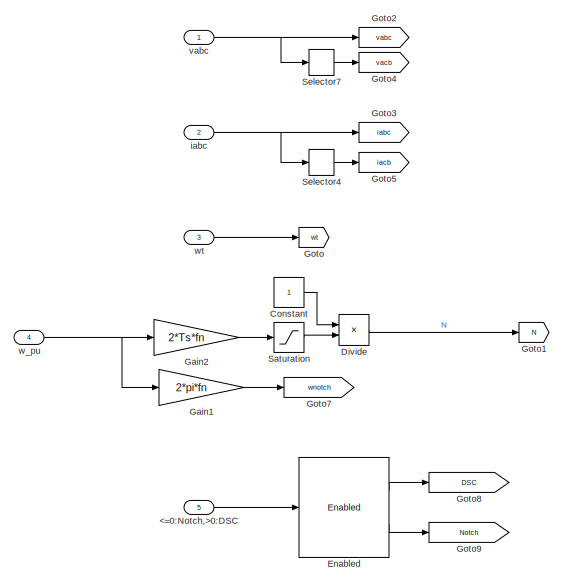
[diagram: abc_dq_single_notch_dsc_sfunction - part 1/2, middle left region]
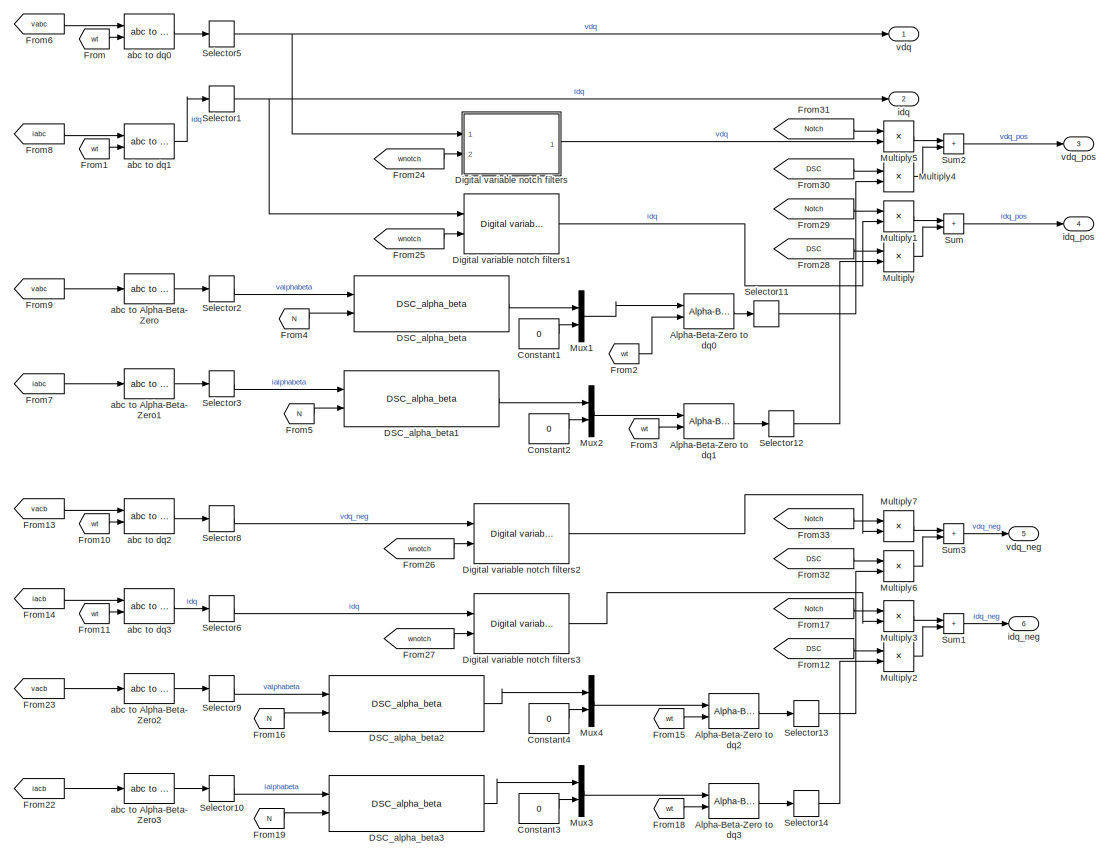
[diagram: abc_dq_single_notch_dsc_sfunction - part 2/2, right side, full height]
BLOCK [SubSystem] abc_dq_single_notch_dsc_sfunction
  AncestorBlock = pwrsysTransf/abc_dq_single_notch_dsc_sfunction
  Ports = [5, 6]
  RequestExecContextInheritance = off
BLOCK [Inport] abc_dq_single_notch_dsc_sfunction/<=0:Notch,>0:DSC
  Port = 5
BLOCK [Reference] abc_dq_single_notch_dsc_sfunction/Alpha-Beta-Zero to dq0  REF=powerlib_meascontrol/Transformations/Alpha-Beta-Zero
to dq0
  Ports = [2, 1]
  SourceBlock = powerlib_meascontrol/Transformations/Alpha-Beta-Zero\nto dq0
  SourceProductBaseCode = PS
  SourceType = Alpha-Beta-Zero to dq0 Transformation
BLOCK [Reference] abc_dq_single_notch_dsc_sfunction/Alpha-Beta-Zero to dq1  REF=powerlib_meascontrol/Transformations/Alpha-Beta-Zero
to dq0
  Ports = [2, 1]
  SourceBlock = powerlib_meascontrol/Transformations/Alpha-Beta-Zero\nto dq0
  SourceProductBaseCode = PS
  SourceType = Alpha-Beta-Zero to dq0 Transformation
BLOCK [Reference] abc_dq_single_notch_dsc_sfunction/Alpha-Beta-Zero to dq2  REF=powerlib_meascontrol/Transformations/Alpha-Beta-Zero
to dq0
  Ports = [2, 1]
  SourceBlock = powerlib_meascontrol/Transformations/Alpha-Beta-Zero\nto dq0
  SourceProductBaseCode = PS
  SourceType = Alpha-Beta-Zero to dq0 Transformation
BLOCK [Reference] abc_dq_single_notch_dsc_sfunction/Alpha-Beta-Zero to dq3  REF=powerlib_meascontrol/Transformations/Alpha-Beta-Zero
to dq0
  Ports = [2, 1]
  SourceBlock = powerlib_meascontrol/Transformations/Alpha-Beta-Zero\nto dq0
  SourceProductBaseCode = PS
  SourceType = Alpha-Beta-Zero to dq0 Transformation
BLOCK [Constant] abc_dq_single_notch_dsc_sfunction/Constant
BLOCK [Constant] abc_dq_single_notch_dsc_sfunction/Constant1
  Value = 0
BLOCK [Constant] abc_dq_single_notch_dsc_sfunction/Constant2
  Value = 0
BLOCK [Constant] abc_dq_single_notch_dsc_sfunction/Constant3
  Value = 0
BLOCK [Constant] abc_dq_single_notch_dsc_sfunction/Constant4
  Value = 0
BLOCK [Reference] abc_dq_single_notch_dsc_sfunction/DSC_alpha_beta  REF=pwrsysBasic/DSC_alpha_beta
  Ports = [2, 1]
  SourceBlock = pwrsysBasic/DSC_alpha_beta
  SourceProductName = NTNU Power Systems
  SourceType = Delayed signal cancellation of a scalar
BLOCK [Reference] abc_dq_single_notch_dsc_sfunction/DSC_alpha_beta1  REF=pwrsysBasic/DSC_alpha_beta
  Ports = [2, 1]
  SourceBlock = pwrsysBasic/DSC_alpha_beta
  SourceProductName = NTNU Power Systems
  SourceType = Delayed signal cancellation of a scalar
BLOCK [Reference] abc_dq_single_notch_dsc_sfunction/DSC_alpha_beta2  REF=pwrsysBasic/DSC_alpha_beta
  Ports = [2, 1]
  SourceBlock = pwrsysBasic/DSC_alpha_beta
  SourceProductName = NTNU Power Systems
  SourceType = Delayed signal cancellation of a scalar
BLOCK [Reference] abc_dq_single_notch_dsc_sfunction/DSC_alpha_beta3  REF=pwrsysBasic/DSC_alpha_beta
  Ports = [2, 1]
  SourceBlock = pwrsysBasic/DSC_alpha_beta
  SourceProductName = NTNU Power Systems
  SourceType = Delayed signal cancellation of a scalar
BLOCK [SubSystem] abc_dq_single_notch_dsc_sfunction/Digital variable notch filters
  Ports = [2, 1]
  RequestExecContextInheritance = off
BLOCK [Constant] abc_dq_single_notch_dsc_sfunction/Digital variable notch filters/Constant
  Value = 0
BLOCK [Constant] abc_dq_single_notch_dsc_sfunction/Digital variable notch filters/Constant1
  Value = zeta
BLOCK [Constant] abc_dq_single_notch_dsc_sfunction/Digital variable notch filters/Constant2
  Value = 0
BLOCK [Constant] abc_dq_single_notch_dsc_sfunction/Digital variable notch filters/Constant3
  Value = zeta
BLOCK [Demux] abc_dq_single_notch_dsc_sfunction/Digital variable notch filters/Demux
  Outputs = 2
  Ports = [1, 2]
BLOCK [Reference] abc_dq_single_notch_dsc_sfunction/Digital variable notch filters/Discrete Notch  REF=pwrsysBasic/Discrete Notch
  Ports = [4, 1]
  SourceBlock = pwrsysBasic/Discrete Notch
  SourceProductName = NTNU Power Systems
  SourceType = Discrete Notch with time-varying parameters
BLOCK [Reference] abc_dq_single_notch_dsc_sfunction/Digital variable notch filters/Discrete Notch1  REF=pwrsysBasic/Discrete Notch
  Ports = [4, 1]
  SourceBlock = pwrsysBasic/Discrete Notch
  SourceProductName = NTNU Power Systems
  SourceType = Discrete Notch with time-varying parameters
BLOCK [Mux] abc_dq_single_notch_dsc_sfunction/Digital variable notch filters/Mux
  DisplayOption = bar
  Inputs = 2
  Ports = [2, 1]
BLOCK [Inport] abc_dq_single_notch_dsc_sfunction/Digital variable notch filters/dq_in
BLOCK [Outport] abc_dq_single_notch_dsc_sfunction/Digital variable notch filters/dq_out
BLOCK [Inport] abc_dq_single_notch_dsc_sfunction/Digital variable notch filters/wnotch
  Port = 2
BLOCK [Reference] abc_dq_single_notch_dsc_sfunction/Digital variable notch filters1  REF=pwrsysTransf/abc_dq_single_notch_dsc_sfunction/Digital variable notch filters
  Ports = [2, 1]
  SourceBlock = pwrsysTransf/abc_dq_single_notch_dsc_sfunction/Digital variable notch filters
  SourceProductName = NTNU Power Systems
  SourceType = SubSystem
BLOCK [Reference] abc_dq_single_notch_dsc_sfunction/Digital variable notch filters2  REF=pwrsysTransf/abc_dq_single_notch_dsc_sfunction/Digital variable notch filters
  Ports = [2, 1]
  SourceBlock = pwrsysTransf/abc_dq_single_notch_dsc_sfunction/Digital variable notch filters
  SourceProductName = NTNU Power Systems
  SourceType = SubSystem
BLOCK [Reference] abc_dq_single_notch_dsc_sfunction/Digital variable notch filters3  REF=pwrsysTransf/abc_dq_single_notch_dsc_sfunction/Digital variable notch filters
  Ports = [2, 1]
  SourceBlock = pwrsysTransf/abc_dq_single_notch_dsc_sfunction/Digital variable notch filters
  SourceProductName = NTNU Power Systems
  SourceType = SubSystem
BLOCK [Product] abc_dq_single_notch_dsc_sfunction/Divide
  Inputs = */
  Ports = [2, 1]
BLOCK [Reference] abc_dq_single_notch_dsc_sfunction/Enabled  REF=pwrsysBasic/Enabled
  Ports = [1, 2]
  SourceBlock = pwrsysBasic/Enabled
  SourceProductName = NTNU Power Systems
  SourceType = Enabled block
BLOCK [From] abc_dq_single_notch_dsc_sfunction/From
  GotoTag = wt
BLOCK [From] abc_dq_single_notch_dsc_sfunction/From1
  GotoTag = wt
BLOCK [From] abc_dq_single_notch_dsc_sfunction/From10
  GotoTag = wt
BLOCK [From] abc_dq_single_notch_dsc_sfunction/From11
  GotoTag = wt
BLOCK [From] abc_dq_single_notch_dsc_sfunction/From12
  GotoTag = DSC
BLOCK [From] abc_dq_single_notch_dsc_sfunction/From13
  GotoTag = vacb
BLOCK [From] abc_dq_single_notch_dsc_sfunction/From14
  GotoTag = iacb
BLOCK [From] abc_dq_single_notch_dsc_sfunction/From15
  GotoTag = wt
BLOCK [From] abc_dq_single_notch_dsc_sfunction/From16
  GotoTag = N
BLOCK [From] abc_dq_single_notch_dsc_sfunction/From17
  GotoTag = Notch
BLOCK [From] abc_dq_single_notch_dsc_sfunction/From18
  GotoTag = wt
BLOCK [From] abc_dq_single_notch_dsc_sfunction/From19
  GotoTag = N
BLOCK [From] abc_dq_single_notch_dsc_sfunction/From2
  GotoTag = wt
BLOCK [From] abc_dq_single_notch_dsc_sfunction/From22
  GotoTag = iacb
BLOCK [From] abc_dq_single_notch_dsc_sfunction/From23
  GotoTag = vacb
BLOCK [From] abc_dq_single_notch_dsc_sfunction/From24
  GotoTag = wnotch
BLOCK [From] abc_dq_single_notch_dsc_sfunction/From25
  GotoTag = wnotch
BLOCK [From] abc_dq_single_notch_dsc_sfunction/From26
  GotoTag = wnotch
BLOCK [From] abc_dq_single_notch_dsc_sfunction/From27
  GotoTag = wnotch
BLOCK [From] abc_dq_single_notch_dsc_sfunction/From28
  GotoTag = DSC
BLOCK [From] abc_dq_single_notch_dsc_sfunction/From29
  GotoTag = Notch
BLOCK [From] abc_dq_single_notch_dsc_sfunction/From3
  GotoTag = wt
BLOCK [From] abc_dq_single_notch_dsc_sfunction/From30
  GotoTag = DSC
BLOCK [From] abc_dq_single_notch_dsc_sfunction/From31
  GotoTag = Notch
BLOCK [From] abc_dq_single_notch_dsc_sfunction/From32
  GotoTag = DSC
BLOCK [From] abc_dq_single_notch_dsc_sfunction/From33
  GotoTag = Notch
BLOCK [From] abc_dq_single_notch_dsc_sfunction/From4
  GotoTag = N
BLOCK [From] abc_dq_single_notch_dsc_sfunction/From5
  GotoTag = N
BLOCK [From] abc_dq_single_notch_dsc_sfunction/From6
  GotoTag = vabc
BLOCK [From] abc_dq_single_notch_dsc_sfunction/From7
  GotoTag = iabc
BLOCK [From] abc_dq_single_notch_dsc_sfunction/From8
  GotoTag = iabc
BLOCK [From] abc_dq_single_notch_dsc_sfunction/From9
  GotoTag = vabc
BLOCK [Gain] abc_dq_single_notch_dsc_sfunction/Gain1
  Gain = 2*pi*fn
BLOCK [Gain] abc_dq_single_notch_dsc_sfunction/Gain2
  Gain = 2*Ts*fn
BLOCK [Goto] abc_dq_single_notch_dsc_sfunction/Goto
  GotoTag = wt
BLOCK [Goto] abc_dq_single_notch_dsc_sfunction/Goto1
  GotoTag = N
BLOCK [Goto] abc_dq_single_notch_dsc_sfunction/Goto2
  GotoTag = vabc
BLOCK [Goto] abc_dq_single_notch_dsc_sfunction/Goto3
  GotoTag = iabc
BLOCK [Goto] abc_dq_single_notch_dsc_sfunction/Goto4
  GotoTag = vacb
BLOCK [Goto] abc_dq_single_notch_dsc_sfunction/Goto5
  GotoTag = iacb
BLOCK [Goto] abc_dq_single_notch_dsc_sfunction/Goto7
  GotoTag = wnotch
BLOCK [Goto] abc_dq_single_notch_dsc_sfunction/Goto8
  GotoTag = DSC
BLOCK [Goto] abc_dq_single_notch_dsc_sfunction/Goto9
  GotoTag = Notch
BLOCK [Product] abc_dq_single_notch_dsc_sfunction/Multiply
  Ports = [2, 1]
BLOCK [Product] abc_dq_single_notch_dsc_sfunction/Multiply1
  Ports = [2, 1]
BLOCK [Product] abc_dq_single_notch_dsc_sfunction/Multiply2
  Ports = [2, 1]
BLOCK [Product] abc_dq_single_notch_dsc_sfunction/Multiply3
  Ports = [2, 1]
BLOCK [Product] abc_dq_single_notch_dsc_sfunction/Multiply4
  Ports = [2, 1]
BLOCK [Product] abc_dq_single_notch_dsc_sfunction/Multiply5
  Ports = [2, 1]
BLOCK [Product] abc_dq_single_notch_dsc_sfunction/Multiply6
  Ports = [2, 1]
BLOCK [Product] abc_dq_single_notch_dsc_sfunction/Multiply7
  Ports = [2, 1]
BLOCK [Mux] abc_dq_single_notch_dsc_sfunction/Mux1
  DisplayOption = bar
  Inputs = [2 1]
  Ports = [2, 1]
BLOCK [Mux] abc_dq_single_notch_dsc_sfunction/Mux2
  DisplayOption = bar
  Inputs = [2 1]
  Ports = [2, 1]
BLOCK [Mux] abc_dq_single_notch_dsc_sfunction/Mux3
  DisplayOption = bar
  Inputs = [2 1]
  Ports = [2, 1]
BLOCK [Mux] abc_dq_single_notch_dsc_sfunction/Mux4
  DisplayOption = bar
  Inputs = [2 1]
  Ports = [2, 1]
BLOCK [Saturate] abc_dq_single_notch_dsc_sfunction/Saturation
  LowerLimit = 0.000001
  UpperLimit = inf
BLOCK [Selector] abc_dq_single_notch_dsc_sfunction/Selector1
  IndexOptions = Index vector (dialog)
  Indices = [1 2]
  InputPortWidth = 3
  OutputSizes = 1
  Ports = [1, 1]
BLOCK [Selector] abc_dq_single_notch_dsc_sfunction/Selector10
  IndexOptions = Index vector (dialog)
  Indices = [1 2]
  InputPortWidth = 3
  OutputSizes = 1
  Ports = [1, 1]
BLOCK [Selector] abc_dq_single_notch_dsc_sfunction/Selector11
  IndexOptions = Index vector (dialog)
  Indices = [1 2]
  InputPortWidth = 3
  OutputSizes = 1
  Ports = [1, 1]
BLOCK [Selector] abc_dq_single_notch_dsc_sfunction/Selector12
  IndexOptions = Index vector (dialog)
  Indices = [1 2]
  InputPortWidth = 3
  OutputSizes = 1
  Ports = [1, 1]
BLOCK [Selector] abc_dq_single_notch_dsc_sfunction/Selector13
  IndexOptions = Index vector (dialog)
  Indices = [1 2]
  InputPortWidth = 3
  OutputSizes = 1
  Ports = [1, 1]
BLOCK [Selector] abc_dq_single_notch_dsc_sfunction/Selector14
  IndexOptions = Index vector (dialog)
  Indices = [1 2]
  InputPortWidth = 3
  OutputSizes = 1
  Ports = [1, 1]
BLOCK [Selector] abc_dq_single_notch_dsc_sfunction/Selector2
  IndexOptions = Index vector (dialog)
  Indices = [1 2]
  InputPortWidth = 3
  OutputSizes = 1
  Ports = [1, 1]
BLOCK [Selector] abc_dq_single_notch_dsc_sfunction/Selector3
  IndexOptions = Index vector (dialog)
  Indices = [1 2]
  InputPortWidth = 3
  OutputSizes = 1
  Ports = [1, 1]
BLOCK [Selector] abc_dq_single_notch_dsc_sfunction/Selector4
  IndexOptions = Index vector (dialog)
  Indices = [1 3 2]
  InputPortWidth = 3
  OutputSizes = 1
  Ports = [1, 1]
BLOCK [Selector] abc_dq_single_notch_dsc_sfunction/Selector5
  IndexOptions = Index vector (dialog)
  Indices = [1 2]
  InputPortWidth = 3
  OutputSizes = 1
  Ports = [1, 1]
BLOCK [Selector] abc_dq_single_notch_dsc_sfunction/Selector6
  IndexOptions = Index vector (dialog)
  Indices = [1 2]
  InputPortWidth = 3
  OutputSizes = 1
  Ports = [1, 1]
BLOCK [Selector] abc_dq_single_notch_dsc_sfunction/Selector7
  IndexOptions = Index vector (dialog)
  Indices = [1 3 2]
  InputPortWidth = 3
  OutputSizes = 1
  Ports = [1, 1]
BLOCK [Selector] abc_dq_single_notch_dsc_sfunction/Selector8
  IndexOptions = Index vector (dialog)
  Indices = [1 2]
  InputPortWidth = 3
  OutputSizes = 1
  Ports = [1, 1]
BLOCK [Selector] abc_dq_single_notch_dsc_sfunction/Selector9
  IndexOptions = Index vector (dialog)
  Indices = [1 2]
  InputPortWidth = 3
  OutputSizes = 1
  Ports = [1, 1]
BLOCK [Sum] abc_dq_single_notch_dsc_sfunction/Sum
  IconShape = rectangular
  Ports = [2, 1]
BLOCK [Sum] abc_dq_single_notch_dsc_sfunction/Sum1
  IconShape = rectangular
  Ports = [2, 1]
BLOCK [Sum] abc_dq_single_notch_dsc_sfunction/Sum2
  IconShape = rectangular
  Ports = [2, 1]
BLOCK [Sum] abc_dq_single_notch_dsc_sfunction/Sum3
  IconShape = rectangular
  Ports = [2, 1]
BLOCK [Reference] abc_dq_single_notch_dsc_sfunction/abc to Alpha-Beta-Zero  REF=powerlib_meascontrol/Transformations/abc to
Alpha-Beta-Zero
  Ports = [1, 1]
  SourceBlock = powerlib_meascontrol/Transformations/abc to\nAlpha-Beta-Zero
  SourceProductBaseCode = PS
  SourceType = abc to Alpha-Beta-Zero Transformation
BLOCK [Reference] abc_dq_single_notch_dsc_sfunction/abc to Alpha-Beta-Zero1  REF=powerlib_meascontrol/Transformations/abc to
Alpha-Beta-Zero
  Ports = [1, 1]
  SourceBlock = powerlib_meascontrol/Transformations/abc to\nAlpha-Beta-Zero
  SourceProductBaseCode = PS
  SourceType = abc to Alpha-Beta-Zero Transformation
BLOCK [Reference] abc_dq_single_notch_dsc_sfunction/abc to Alpha-Beta-Zero2  REF=powerlib_meascontrol/Transformations/abc to
Alpha-Beta-Zero
  Ports = [1, 1]
  SourceBlock = powerlib_meascontrol/Transformations/abc to\nAlpha-Beta-Zero
  SourceProductBaseCode = PS
  SourceType = abc to Alpha-Beta-Zero Transformation
BLOCK [Reference] abc_dq_single_notch_dsc_sfunction/abc to Alpha-Beta-Zero3  REF=powerlib_meascontrol/Transformations/abc to
Alpha-Beta-Zero
  Ports = [1, 1]
  SourceBlock = powerlib_meascontrol/Transformations/abc to\nAlpha-Beta-Zero
  SourceProductBaseCode = PS
  SourceType = abc to Alpha-Beta-Zero Transformation
BLOCK [Reference] abc_dq_single_notch_dsc_sfunction/abc to dq0  REF=powerlib_meascontrol/Transformations/abc to dq0
  Ports = [2, 1]
  SourceBlock = powerlib_meascontrol/Transformations/abc to dq0
  SourceProductBaseCode = PS
  SourceType = abc to dq0 Transformation
BLOCK [Reference] abc_dq_single_notch_dsc_sfunction/abc to dq1  REF=powerlib_meascontrol/Transformations/abc to dq0
  Ports = [2, 1]
  SourceBlock = powerlib_meascontrol/Transformations/abc to dq0
  SourceProductBaseCode = PS
  SourceType = abc to dq0 Transformation
BLOCK [Reference] abc_dq_single_notch_dsc_sfunction/abc to dq2  REF=powerlib_meascontrol/Transformations/abc to dq0
  Ports = [2, 1]
  SourceBlock = powerlib_meascontrol/Transformations/abc to dq0
  SourceProductBaseCode = PS
  SourceType = abc to dq0 Transformation
BLOCK [Reference] abc_dq_single_notch_dsc_sfunction/abc to dq3  REF=powerlib_meascontrol/Transformations/abc to dq0
  Ports = [2, 1]
  SourceBlock = powerlib_meascontrol/Transformations/abc to dq0
  SourceProductBaseCode = PS
  SourceType = abc to dq0 Transformation
BLOCK [Inport] abc_dq_single_notch_dsc_sfunction/iabc
  Port = 2
BLOCK [Outport] abc_dq_single_notch_dsc_sfunction/idq
  Port = 2
BLOCK [Outport] abc_dq_single_notch_dsc_sfunction/idq_neg
  Port = 6
BLOCK [Outport] abc_dq_single_notch_dsc_sfunction/idq_pos
  Port = 4
BLOCK [Inport] abc_dq_single_notch_dsc_sfunction/vabc
BLOCK [Outport] abc_dq_single_notch_dsc_sfunction/vdq
BLOCK [Outport] abc_dq_single_notch_dsc_sfunction/vdq_neg
  Port = 5
BLOCK [Outport] abc_dq_single_notch_dsc_sfunction/vdq_pos
  Port = 3
BLOCK [Inport] abc_dq_single_notch_dsc_sfunction/w_pu
  Port = 4
BLOCK [Inport] abc_dq_single_notch_dsc_sfunction/wt
  Port = 3
BLOCK [SubSystem] dq_to_abc_single_dual
  AncestorBlock = pwrsysVICtrl/dq_to_abc_single_dual
  Ports = [7, 2]
  RequestExecContextInheritance = off
BLOCK [Constant] dq_to_abc_single_dual/Constant10
  SampleTime = Ts
  Value = Uabp
BLOCK [Constant] dq_to_abc_single_dual/Constant11
  SampleTime = Ts
  Value = 0
BLOCK [Demux] dq_to_abc_single_dual/Demux
  Outputs = 3
  Ports = [1, 3]
BLOCK [Inport] dq_to_abc_single_dual/Enable_dual
  Port = 5
BLOCK [Inport] dq_to_abc_single_dual/Enable_single
  Port = 2
BLOCK [Gain] dq_to_abc_single_dual/Gain
  Gain = 1/sqrt(3)
BLOCK [Gain] dq_to_abc_single_dual/Gain5
  Gain = -0.5
BLOCK [Goto] dq_to_abc_single_dual/Goto
  GotoTag = modulation
  TagVisibility = global
BLOCK [MinMax] dq_to_abc_single_dual/Max
  Function = max
  Inputs = 3
  Ports = [3, 1]
BLOCK [MinMax] dq_to_abc_single_dual/Max1
  Inputs = 3
  Ports = [3, 1]
BLOCK [Mux] dq_to_abc_single_dual/Mux
  DisplayOption = bar
  Inputs = 6
  Ports = [6, 1]
BLOCK [Mux] dq_to_abc_single_dual/Mux3
  DisplayOption = bar
  Inputs = [2 1]
  Ports = [2, 1]
BLOCK [SubSystem] dq_to_abc_single_dual/PWM Modulator 2 Level
  Ports = [2, 6]
  RequestExecContextInheritance = off
BLOCK [Outport] dq_to_abc_single_dual/PWM Modulator 2 Level/1_B
  Port = 2
BLOCK [Outport] dq_to_abc_single_dual/PWM Modulator 2 Level/1_T
BLOCK [Outport] dq_to_abc_single_dual/PWM Modulator 2 Level/2_B
  Port = 4
BLOCK [Outport] dq_to_abc_single_dual/PWM Modulator 2 Level/2_T
  Port = 3
BLOCK [Outport] dq_to_abc_single_dual/PWM Modulator 2 Level/3_B
  Port = 6
BLOCK [Outport] dq_to_abc_single_dual/PWM Modulator 2 Level/3_T
  Port = 5
BLOCK [Logic] dq_to_abc_single_dual/PWM Modulator 2 Level/AND
  AllPortsSameDT = off
  IconShape = distinctive
  OutDataTypeStr = boolean
  Ports = [2, 1]
BLOCK [Logic] dq_to_abc_single_dual/PWM Modulator 2 Level/AND1
  AllPortsSameDT = off
  IconShape = distinctive
  OutDataTypeStr = boolean
  Ports = [2, 1]
BLOCK [Logic] dq_to_abc_single_dual/PWM Modulator 2 Level/AND2
  AllPortsSameDT = off
  IconShape = distinctive
  OutDataTypeStr = boolean
  Ports = [2, 1]
BLOCK [Logic] dq_to_abc_single_dual/PWM Modulator 2 Level/AND3
  AllPortsSameDT = off
  IconShape = distinctive
  OutDataTypeStr = boolean
  Ports = [2, 1]
BLOCK [Logic] dq_to_abc_single_dual/PWM Modulator 2 Level/AND4
  AllPortsSameDT = off
  IconShape = distinctive
  OutDataTypeStr = boolean
  Ports = [2, 1]
BLOCK [Logic] dq_to_abc_single_dual/PWM Modulator 2 Level/AND5
  AllPortsSameDT = off
  IconShape = distinctive
  OutDataTypeStr = boolean
  Ports = [2, 1]
BLOCK [DataTypeConversion] dq_to_abc_single_dual/PWM Modulator 2 Level/Data Type Conversion
  RndMeth = Floor
  SaturateOnIntegerOverflow = off
BLOCK [Demux] dq_to_abc_single_dual/PWM Modulator 2 Level/Demux
  Outputs = 3
  Ports = [1, 3]
BLOCK [Inport] dq_to_abc_single_dual/PWM Modulator 2 Level/Modulation ABC
BLOCK [Mux] dq_to_abc_single_dual/PWM Modulator 2 Level/Mux
  DisplayOption = bar
  Inputs = 2
  Ports = [2, 1]
BLOCK [Logic] dq_to_abc_single_dual/PWM Modulator 2 Level/NOT
  AllPortsSameDT = off
  IconShape = distinctive
  Operator = NOT
  OutDataTypeStr = boolean
  Ports = [1, 1]
BLOCK [Logic] dq_to_abc_single_dual/PWM Modulator 2 Level/NOT1
  AllPortsSameDT = off
  IconShape = distinctive
  Operator = NOT
  OutDataTypeStr = boolean
  Ports = [1, 1]
BLOCK [Logic] dq_to_abc_single_dual/PWM Modulator 2 Level/NOT2
  AllPortsSameDT = off
  IconShape = distinctive
  Operator = NOT
  OutDataTypeStr = boolean
  Ports = [1, 1]
BLOCK [Inport] dq_to_abc_single_dual/PWM Modulator 2 Level/PWM Enable Disable
  Port = 2
BLOCK [RateTransition] dq_to_abc_single_dual/PWM Modulator 2 Level/Rate Transition4
  OutPortSampleTime = ess.Ts_control
BLOCK [RelationalOperator] dq_to_abc_single_dual/PWM Modulator 2 Level/Relational Operator
  InputSameDT = off
  Operator = >
  OutDataTypeStr = boolean
  Ports = [2, 1]
  RndMeth = Simplest
BLOCK [RelationalOperator] dq_to_abc_single_dual/PWM Modulator 2 Level/Relational Operator1
  InputSameDT = off
  Operator = >
  OutDataTypeStr = boolean
  Ports = [2, 1]
  RndMeth = Simplest
BLOCK [RelationalOperator] dq_to_abc_single_dual/PWM Modulator 2 Level/Relational Operator2
  InputSameDT = off
  Operator = >
  OutDataTypeStr = boolean
  Ports = [2, 1]
  RndMeth = Simplest
BLOCK [Reference] dq_to_abc_single_dual/PWM Modulator 2 Level/Repeating Sequence  REF=simulink/Sources/Repeating
Sequence
  Ports = [0, 1]
  SourceBlock = simulink/Sources/Repeating\nSequence
  SourceProductBaseCode = SL
  SourceType = Repeating table
BLOCK [Scope] dq_to_abc_single_dual/PWM Modulator 2 Level/Scope
  Floating = off
  NumInputPorts = 2
  Ports = [2]
  ScopeSpecificationString = Simulink.scopes.TimeScopeBlockCfg('CurrentConfiguration', extmgr.ConfigurationSet(extmgr.Configuration('Core','General UI',true),extmgr.Configuration('Core','Source UI',true),extmgr.Configuration('Sources','WiredSimulink',true,'DataLoggingVariableName','ScopeData2'),extmgr.Configuration('Visuals','Time Domain',true,'SerializedDisplays',{struct('MinYLimReal','-1.25','MaxYLimReal','1.25','YLabelReal...<+2028ch>
BLOCK [Outport] dq_to_abc_single_dual/PWM_S1_S6
  Port = 2
BLOCK [Product] dq_to_abc_single_dual/Product3
  Inputs = **
  Ports = [2, 1]
BLOCK [Product] dq_to_abc_single_dual/Product6
  Inputs = **
  Ports = [2, 1]
BLOCK [Product] dq_to_abc_single_dual/Product8
  Inputs = */
  Ports = [2, 1]
BLOCK [Product] dq_to_abc_single_dual/Product9
  Inputs = **
  Ports = [2, 1]
BLOCK [RateTransition] dq_to_abc_single_dual/Rate Transition3
  OutPortSampleTime = Ts
BLOCK [RateTransition] dq_to_abc_single_dual/Rate Transition5
  OutPortSampleTime = Ts
BLOCK [Relay] dq_to_abc_single_dual/Relay
  OffSwitchValue = 0.4
  OnSwitchValue = 0.6
BLOCK [Saturate] dq_to_abc_single_dual/Saturation
  LowerLimit = 0.001*Uabp
  UpperLimit = 10*Uabp
BLOCK [Saturate] dq_to_abc_single_dual/Saturation1
  LowerLimit = -1.0
  NameLocation = left
  UpperLimit = 1.0
BLOCK [Saturate] dq_to_abc_single_dual/Saturation2
  LowerLimit = -1.0
  UpperLimit = 1.0
BLOCK [Scope] dq_to_abc_single_dual/Scope
  Floating = off
  NumInputPorts = 1
  Ports = [1]
  ScopeSpecificationString = Simulink.scopes.TimeScopeBlockCfg('CurrentConfiguration', extmgr.ConfigurationSet(extmgr.Configuration('Core','General UI',true),extmgr.Configuration('Core','Source UI',true),extmgr.Configuration('Sources','WiredSimulink',true,'DataLoggingVariableName','ScopeData1'),extmgr.Configuration('Visuals','Time Domain',true,'SerializedDisplays',{struct('MinYLimReal','-1.25','MaxYLimReal','1.25','YLabelReal...<+1457ch>
BLOCK [Scope] dq_to_abc_single_dual/Scope1
  Floating = off
  NumInputPorts = 1
  Ports = [1]
  ScopeSpecificationString = Simulink.scopes.TimeScopeBlockCfg('CurrentConfiguration', extmgr.ConfigurationSet(extmgr.Configuration('Core','General UI',true),extmgr.Configuration('Core','Source UI',true),extmgr.Configuration('Sources','WiredSimulink',true,'DataLoggingVariableName','ScopeData1'),extmgr.Configuration('Visuals','Time Domain',true,'SerializedDisplays',{struct('MinYLimReal','-1.25','MaxYLimReal','1.25','YLabelReal...<+1459ch>
BLOCK [Sum] dq_to_abc_single_dual/Sum1
  Inputs = |++
  Ports = [2, 1]
BLOCK [Sum] dq_to_abc_single_dual/Sum8
  Inputs = |++
  Ports = [2, 1]
BLOCK [Terminator] dq_to_abc_single_dual/Terminator
BLOCK [Terminator] dq_to_abc_single_dual/Terminator1
BLOCK [Terminator] dq_to_abc_single_dual/Terminator2
BLOCK [Outport] dq_to_abc_single_dual/Uabcref
BLOCK [Inport] dq_to_abc_single_dual/Udc
  Port = 6
BLOCK [UnitDelay] dq_to_abc_single_dual/Unit Delay2
  HasFrameUpgradeWarning = on
  InitialCondition = Uabp
  SampleTime = Ts
BLOCK [Reference] dq_to_abc_single_dual/dq0 to abc  REF=powerlib_meascontrol/Transformations/dq0 to abc
  Ports = [2, 1]
  SourceBlock = powerlib_meascontrol/Transformations/dq0 to abc
  SourceProductBaseCode = PS
  SourceType = dq0 to abc Transformation
BLOCK [Inport] dq_to_abc_single_dual/vdq_dual_neg
  Port = 4
BLOCK [Inport] dq_to_abc_single_dual/vdq_dual_pos
  Port = 3
BLOCK [Inport] dq_to_abc_single_dual/vdq_single
BLOCK [Inport] dq_to_abc_single_dual/wt
  Port = 7
BLOCK [Reference] powergui  REF=powerlib/powergui
  Ports = []
  Priority = 1
  SourceBlock = powerlib/powergui
  SourceProductBaseCode = PS
  SourceType = PSB option menu block
BLOCK [SubSystem] pqui_Transd_NoZeroSeq
  AncestorBlock = pwrsysBasic/pqui_Transd_NoZeroSeq
  Ports = [2, 4]
  RequestExecContextInheritance = off
BLOCK [Sum] pqui_Transd_NoZeroSeq/Add3
  IconShape = rectangular
  Inputs = +-
  Ports = [2, 1]
BLOCK [Demux] pqui_Transd_NoZeroSeq/Demux1
  Outputs = 2
  Ports = [1, 2]
BLOCK [Demux] pqui_Transd_NoZeroSeq/Demux4
  Outputs = 2
  Ports = [1, 2]
BLOCK [DotProduct] pqui_Transd_NoZeroSeq/Dot Product
  OutDataTypeStr = Inherit: Inherit via internal rule
BLOCK [Gain] pqui_Transd_NoZeroSeq/Gain
  Gain = 1.5
BLOCK [Gain] pqui_Transd_NoZeroSeq/Gain1
  Gain = 3/2/Sn
BLOCK [Gain] pqui_Transd_NoZeroSeq/Gain2
  Gain = 3/2/Sn
BLOCK [Gain] pqui_Transd_NoZeroSeq/Gain3
  Gain = 1/Uanp
BLOCK [Gain] pqui_Transd_NoZeroSeq/Gain4
  Gain = 1/Iap
BLOCK [Math] pqui_Transd_NoZeroSeq/Hypot
  Operator = hypot
  Ports = [2, 1]
  RndMeth = Zero
  SignedPower = on
BLOCK [Math] pqui_Transd_NoZeroSeq/Hypot1
  Operator = hypot
  Ports = [2, 1]
  RndMeth = Zero
  SignedPower = on
BLOCK [Inport] pqui_Transd_NoZeroSeq/Iabc
  Port = 2
BLOCK [Product] pqui_Transd_NoZeroSeq/Product3
  Ports = [2, 1]
BLOCK [Product] pqui_Transd_NoZeroSeq/Product4
  Ports = [2, 1]
BLOCK [Scope] pqui_Transd_NoZeroSeq/Scope
  Floating = off
  NumInputPorts = 1
  Ports = [1]
  ScopeSpecificationString = Simulink.scopes.TimeScopeBlockCfg('CurrentConfiguration', extmgr.ConfigurationSet(extmgr.Configuration('Core','General UI',true),extmgr.Configuration('Core','Source UI',true),extmgr.Configuration('Sources','WiredSimulink',true,'DataLoggingVariableName','ScopeData2'),extmgr.Configuration('Visuals','Time Domain',true),extmgr.Configuration('Tools','Plot Navigation',true),extmgr.Configuration('Tools',...<+40ch>
BLOCK [Scope] pqui_Transd_NoZeroSeq/Scope1
  Floating = off
  NumInputPorts = 1
  Ports = [1]
  ScopeSpecificationString = Simulink.scopes.TimeScopeBlockCfg('CurrentConfiguration', extmgr.ConfigurationSet(extmgr.Configuration('Core','General UI',true),extmgr.Configuration('Core','Source UI',true),extmgr.Configuration('Sources','WiredSimulink',true,'DataLoggingVariableName','ScopeData4'),extmgr.Configuration('Visuals','Time Domain',true,'SerializedDisplays',{struct('MinYLimReal','-1763764.87916','MaxYLimReal','6314696....<+1463ch>
BLOCK [Selector] pqui_Transd_NoZeroSeq/Selector1
  IndexOptions = Index vector (dialog)
  Indices = [1 2]
  InputPortWidth = 3
  OutputSizes = 1
  Ports = [1, 1]
BLOCK [Selector] pqui_Transd_NoZeroSeq/Selector5
  IndexOptions = Index vector (dialog)
  Indices = [1 2]
  InputPortWidth = 3
  OutputSizes = 1
  Ports = [1, 1]
BLOCK [Inport] pqui_Transd_NoZeroSeq/Vabc
BLOCK [Reference] pqui_Transd_NoZeroSeq/abc to xyz1  REF=pwrsysTransf/abc to xyz
  Ports = [1, 1]
  SourceBlock = pwrsysTransf/abc to xyz
  SourceProductName = NTNU Power Systems
  SourceType = Clarke transformation
BLOCK [Reference] pqui_Transd_NoZeroSeq/abc to xyz2  REF=pwrsysTransf/abc to xyz
  Ports = [1, 1]
  SourceBlock = pwrsysTransf/abc to xyz
  SourceProductName = NTNU Power Systems
  SourceType = Clarke transformation
BLOCK [Outport] pqui_Transd_NoZeroSeq/i
  Port = 4
BLOCK [Outport] pqui_Transd_NoZeroSeq/p
BLOCK [Outport] pqui_Transd_NoZeroSeq/q
  Port = 2
BLOCK [Outport] pqui_Transd_NoZeroSeq/v
  Port = 3
BLOCK [SubSystem] pqui_Transd_NoZeroSeq1
  AncestorBlock = pwrsysBasic/pqui_Transd_NoZeroSeq
  Ports = [2, 2]
  RequestExecContextInheritance = off
BLOCK [Sum] pqui_Transd_NoZeroSeq1/Add3
  IconShape = rectangular
  Inputs = +-
  Ports = [2, 1]
BLOCK [Demux] pqui_Transd_NoZeroSeq1/Demux1
  Outputs = 2
  Ports = [1, 2]
BLOCK [Demux] pqui_Transd_NoZeroSeq1/Demux4
  Outputs = 2
  Ports = [1, 2]
BLOCK [DotProduct] pqui_Transd_NoZeroSeq1/Dot Product
  OutDataTypeStr = Inherit: Inherit via internal rule
BLOCK [Gain] pqui_Transd_NoZeroSeq1/Gain
  Gain = 1.5
BLOCK [Gain] pqui_Transd_NoZeroSeq1/Gain1
  Gain = 3/2/Sn
BLOCK [Gain] pqui_Transd_NoZeroSeq1/Gain2
  Gain = 3/2/Sn
BLOCK [Inport] pqui_Transd_NoZeroSeq1/Iabc
  Port = 2
BLOCK [Product] pqui_Transd_NoZeroSeq1/Product3
  Ports = [2, 1]
BLOCK [Product] pqui_Transd_NoZeroSeq1/Product4
  Ports = [2, 1]
BLOCK [Scope] pqui_Transd_NoZeroSeq1/Scope
  Floating = off
  NumInputPorts = 1
  Ports = [1]
  ScopeSpecificationString = Simulink.scopes.TimeScopeBlockCfg('CurrentConfiguration', extmgr.ConfigurationSet(extmgr.Configuration('Core','General UI',true),extmgr.Configuration('Core','Source UI',true),extmgr.Configuration('Sources','WiredSimulink',true,'DataLoggingVariableName','ScopeData2'),extmgr.Configuration('Visuals','Time Domain',true),extmgr.Configuration('Tools','Plot Navigation',true),extmgr.Configuration('Tools',...<+40ch>
BLOCK [Scope] pqui_Transd_NoZeroSeq1/Scope1
  Floating = off
  NumInputPorts = 1
  Ports = [1]
  ScopeSpecificationString = Simulink.scopes.TimeScopeBlockCfg('CurrentConfiguration', extmgr.ConfigurationSet(extmgr.Configuration('Core','General UI',true),extmgr.Configuration('Core','Source UI',true),extmgr.Configuration('Sources','WiredSimulink',true,'DataLoggingVariableName','ScopeData4'),extmgr.Configuration('Visuals','Time Domain',true,'SerializedDisplays',{struct('MinYLimReal','-1763764.87916','MaxYLimReal','6314696....<+1463ch>
BLOCK [Selector] pqui_Transd_NoZeroSeq1/Selector1
  IndexOptions = Index vector (dialog)
  Indices = [1 2]
  InputPortWidth = 3
  OutputSizes = 1
  Ports = [1, 1]
BLOCK [Selector] pqui_Transd_NoZeroSeq1/Selector5
  IndexOptions = Index vector (dialog)
  Indices = [1 2]
  InputPortWidth = 3
  OutputSizes = 1
  Ports = [1, 1]
BLOCK [Inport] pqui_Transd_NoZeroSeq1/Vabc
BLOCK [Reference] pqui_Transd_NoZeroSeq1/abc to xyz1  REF=pwrsysTransf/abc to xyz
  Ports = [1, 1]
  SourceBlock = pwrsysTransf/abc to xyz
  SourceProductName = NTNU Power Systems
  SourceType = Clarke transformation
BLOCK [Reference] pqui_Transd_NoZeroSeq1/abc to xyz2  REF=pwrsysTransf/abc to xyz
  Ports = [1, 1]
  SourceBlock = pwrsysTransf/abc to xyz
  SourceProductName = NTNU Power Systems
  SourceType = Clarke transformation
BLOCK [Outport] pqui_Transd_NoZeroSeq1/p
BLOCK [Outport] pqui_Transd_NoZeroSeq1/q
  Port = 2
ANNOTATION (root): P-Q Control
ANNOTATION (root): +iq = 1.0 means, Q_LV = -0.84, V_LV = 0.84 pu
ANNOTATION (root): -iq = 1.0 means, Q_LV = 1.16, V_LV = 1.16 pu
ANNOTATION (root): Rules for the control
ANNOTATION (root): Power Circuit - BESS/STATCOM
ANNOTATION (root): CURRENT REGULATOR AND PWM
ANNOTATION (root): MEASUREMENTS
ANNOTATION Idq_Dec_Signs_Fdbk_Ref: LV Feedback: (1.0*Ts*Fnom*2*pi) HV Feedback: (1.0*Ts*Fnom*2*pi) - pi/6
ANNOTATION pqui_Transd_NoZeroSeq: Akagi 1984 for p and q calc. without zero seq, factor 3/2 compensates for amplitude invariant Clarke transformation
ANNOTATION pqui_Transd_NoZeroSeq1: Akagi 1984 for p and q calc. without zero seq, factor 3/2 compensates for amplitude invariant Clarke transformation
LINE Bus Creator:1 -> Watch:1
NET Bus Selector1:1 -> Battery_Watch:1, Product:1
NET Bus Selector1:2 -> Battery_Watch:2, Product:2
LINE Bus Selector2:1 -> Demux:1
LINE Bus Selector2:2 -> Demux1:1
LINE Bus Selector2:3 -> Scope1:3
LINE Bus Selector:1 -> Gain3:1
LINE Bus Selector:2 -> Gain5:1
LINE Bus Selector:3 -> Gain6:1
LINE Bus Selector:4 -> Gain7:1
LINE Bus Selector:5 -> HV Side _ Watch:5
LINE Constant10:1 -> abc_dq_single_notch_dsc_sfunction:5
NET Constant11:1 -> Idq_Dec_Signs_Fdbk_Ref:5, Idq_Dec_Signs_Fdbk_Ref:7
NET Constant12:1 -> Idq_Dec_Signs_Fdbk_Ref:10, Idq_Dec_Signs_Fdbk_Ref:6, Idq_Dec_Signs_Fdbk_Ref:8, Idq_Dec_Signs_Fdbk_Ref:9
LINE Constant1:1 -> dq_to_abc_single_dual:2
LINE Constant7:1 -> dq_to_abc_single_dual:5
NET Constant9:1 -> dq_to_abc_single_dual:3, dq_to_abc_single_dual:4
LINE Constant:1 -> Three-Phase Breaker:1
LINE Current Measurement1:1 -> Mux:2
LINE Current Measurement2:1 -> Mux:3
NET Current Measurement3:1 -> Goto15:1, Scope11:1
LINE Current Measurement4:1 -> Mux4:1
LINE Current Measurement5:1 -> Mux4:2
LINE Current Measurement6:1 -> Mux4:3
LINE Current Measurement7:1 -> Mux5:1
LINE Current Measurement8:1 -> Mux5:2
LINE Current Measurement9:1 -> Mux5:3
LINE Current Measurement:1 -> Mux:1
LINE Demux1:1 -> Mux7:2
LINE Demux1:2 -> Mux8:2
LINE Demux:1 -> Mux7:1
LINE Demux:2 -> Mux8:1
LINE Digital first order LPF1:1 -> Goto5:1
LINE Digital first order LPF2:1 -> Goto12:1
LINE Digital first order LPF3:1 -> Goto11:1
LINE Digital first order LPF4:1 -> Goto6:1
LINE Digital first order LPF:1 -> Goto10:1
LINE Discrete-Time Integrator1:1 -> Saturation4:1
LINE Discrete-Time Integrator:1 -> Saturation1:1
LINE From10:1 -> Rate Transition5:1
LINE From11:1 -> Rate Transition3:1
NET From12:1 -> Mux9:2, Rate Transition7:1, Scope2:2, Scope5:1
LINE From13:1 -> Bus Creator:9
LINE From14:1 -> Idq_Dec_Signs_Fdbk_Ref:4
NET From15:1 -> Idq_Dec_Signs_Fdbk_Ref:2, Scope10:1, Scope1:7
LINE From16:1 -> Idq_Dec_Signs_Fdbk_Ref:3
LINE From17:1 -> dq_to_abc_single_dual:6
LINE From18:1 -> 2 Level Converter:1
LINE From19:1 -> Bus Selector:1
LINE From1:1 -> dq_to_abc_single_dual:7
LINE From20:1 -> Bus Selector1:1
LINE From21:1 -> Bus Selector2:1
LINE From22:1 -> 2 Level Converter:2
LINE From23:1 -> Scope1:4
NET From24:1 -> Mux12:2, Sum1:2
NET From25:1 -> Mux11:2, Sum3:2
LINE From26:1 -> Scope1:8
LINE From2:1 -> Rate Transition4:1
LINE From3:1 -> Rate Transition2:1
LINE From4:1 -> Rate Transition6:1
NET From5:1 -> PLL_pu3:1, abc_dq_single_notch_dsc_sfunction:1
LINE From6:1 -> Rate Transition1:1
LINE From7:1 -> abc_dq_single_notch_dsc_sfunction:2
LINE From8:1 -> abc_dq_single_notch_dsc_sfunction:3
LINE From9:1 -> abc_dq_single_notch_dsc_sfunction:4
LINE From:1 -> Rate Transition:1
LINE Gain10:1 -> Discrete-Time Integrator:1
LINE Gain11:1 -> Mux6:2
LINE Gain12:1 -> Discrete-Time Integrator1:1
NET Gain13:1 -> Scope13:1, Scope1:5
LINE Gain14:1 -> Sum2:1
NET Gain15:1 -> Scope13:2, Scope1:6
NET Gain1:1 -> Bus Creator:8, Goto9:1
NET Gain2:1 -> Bus Creator:5, Digital first order LPF4:1
NET Gain3:1 -> HV Side _ Watch:1, Mux9:3, Scope2:3
NET Gain4:1 -> Bus Creator:6, Goto8:1
NET Gain5:1 -> HV Side _ Watch:2, Mux9:4, Scope2:4
LINE Gain6:1 -> HV Side _ Watch:3
LINE Gain7:1 -> HV Side _ Watch:4
LINE Gain8:1 -> Scope6:1
LINE Gain9:1 -> Sum:1
NET Gain:1 -> Bus Creator:7, Goto7:1
LINE Idq_Dec_Signs_Fdbk_Ref:1 -> dq_to_abc_single_dual:1
LINE Idq_Dec_Signs_Fdbk_Ref:2 -> Terminator4:1
LINE Idq_Dec_Signs_Fdbk_Ref:3 -> Terminator5:1
LINE Idq_Dec_Signs_Fdbk_Ref:4 -> Goto16:1
LINE Mux11:1 -> Gain13:1
LINE Mux12:1 -> Gain15:1
NET Mux1:1 -> Goto3:1, Mux9:1, Scope2:1, Scope9:1
LINE Mux2:1 -> Goto4:1
NET Mux3:1 -> Goto17:1, Scope4:1
LINE Mux4:1 -> Goto18:1
NET Mux5:1 -> Goto19:1, Scope8:1
LINE Mux6:1 -> Idq_Dec_Signs_Fdbk_Ref:1
LINE Mux7:1 -> Scope1:1
LINE Mux8:1 -> Scope1:2
LINE Mux9:1 -> To Workspace:1
NET Mux:1 -> Goto2:1, Scope7:1
LINE PLL_pu3:1 -> Goto14:1
NET PLL_pu3:2 -> Bus Creator:10, Goto1:1
LINE P_LV_ref1:1 -> Saturation5:1
LINE Product:1 -> Gain8:1
LINE Q_LV_ref:1 -> Saturation2:1
LINE RMS:1 -> Scope3:2
LINE Rate Transition1:1 -> Unit Delay4:1
LINE Rate Transition2:1 -> Unit Delay7:1
LINE Rate Transition3:1 -> Unit Delay8:1
LINE Rate Transition4:1 -> Unit Delay1:1
LINE Rate Transition5:1 -> Unit Delay3:1
LINE Rate Transition6:1 -> Terminator:1
NET Rate Transition7:1 -> RMS:1, Scope3:1
LINE Rate Transition:1 -> Unit Delay6:1
LINE Saturation1:1 -> Sum:2
NET Saturation2:1 -> Mux12:1, Sum1:1
LINE Saturation3:1 -> Mux6:1
LINE Saturation4:1 -> Sum2:2
NET Saturation5:1 -> Mux11:1, Sum3:1
LINE Saturation:1 -> Gain11:1
NET Sum1:1 -> Gain10:1, Gain9:1
LINE Sum2:1 -> Saturation3:1
NET Sum3:1 -> Gain12:1, Gain14:1
LINE Sum:1 -> Saturation:1
NET Unit Delay1:1 -> Gain:1, pqui_Transd_NoZeroSeq1:1
NET Unit Delay3:1 -> Gain1:1, pqui_Transd_NoZeroSeq1:2
LINE Unit Delay4:1 -> Gain4:1
NET Unit Delay6:1 -> Gain2:1, Goto13:1
LINE Unit Delay7:1 -> pqui_Transd_NoZeroSeq:1
LINE Unit Delay8:1 -> pqui_Transd_NoZeroSeq:2
LINE Voltage Measurement1:1 -> Mux1:1
LINE Voltage Measurement2:1 -> Goto:1
LINE Voltage Measurement3:1 -> Mux3:2
LINE Voltage Measurement4:1 -> Mux1:3
LINE Voltage Measurement5:1 -> Mux2:2
LINE Voltage Measurement6:1 -> Mux2:1
LINE Voltage Measurement7:1 -> Mux2:3
LINE Voltage Measurement8:1 -> Mux3:1
LINE Voltage Measurement9:1 -> Mux3:3
LINE Voltage Measurement:1 -> Mux1:2
LINE abc_dq_single_notch_dsc_sfunction:1 -> Digital first order LPF2:1
LINE abc_dq_single_notch_dsc_sfunction:2 -> Digital first order LPF3:1
LINE abc_dq_single_notch_dsc_sfunction:3 -> Digital first order LPF1:1
LINE abc_dq_single_notch_dsc_sfunction:4 -> Digital first order LPF:1
LINE abc_dq_single_notch_dsc_sfunction:5 -> Terminator2:1
LINE abc_dq_single_notch_dsc_sfunction:6 -> Terminator3:1
NET dq_to_abc_single_dual:1 -> Goto20:1, Scope:1
LINE dq_to_abc_single_dual:2 -> Goto23:1
LINE pqui_Transd_NoZeroSeq1:1 -> Goto21:1
LINE pqui_Transd_NoZeroSeq1:2 -> Goto22:1
LINE pqui_Transd_NoZeroSeq:1 -> Bus Creator:1
LINE pqui_Transd_NoZeroSeq:2 -> Bus Creator:2
LINE pqui_Transd_NoZeroSeq:3 -> Bus Creator:3
LINE pqui_Transd_NoZeroSeq:4 -> Bus Creator:4
PLINE 2 Level Converter:LConn1 -- Current Measurement3:RConn1
PNET net1: 2 Level Converter:LConn2 -- DC Voltage Source:LConn1 -- Voltage Measurement2:LConn2
PLINE 2 Level Converter:RConn1 -- Current Measurement4:LConn1
PLINE 2 Level Converter:RConn2 -- Current Measurement5:LConn1
PLINE 2 Level Converter:RConn3 -- Current Measurement6:LConn1
PNET net2: Current Measurement10:LConn1 -- Current Measurement:LConn1 -- Series RLC Branch6:LConn1 -- Voltage Measurement1:LConn1
PLINE Current Measurement10:RConn1 -- Series RLC Branch9:LConn1
PNET net3: Current Measurement1:LConn1 -- Series RLC Branch2:LConn1 -- Series RLC Branch4:LConn1 -- Voltage Measurement:LConn1
PNET net4: Current Measurement1:RConn1 -- High Res Grounding:LConn2 -- Three-Phase Transformer (Two Windings):RConn2
PNET net5: Current Measurement2:LConn1 -- Series RLC Branch3:LConn1 -- Series RLC Branch5:LConn1 -- Voltage Measurement4:LConn1
PNET net6: Current Measurement2:RConn1 -- High Res Grounding:LConn3 -- Three-Phase Transformer (Two Windings):RConn3
PNET net7: Current Measurement3:LConn1 -- DC Voltage Source:RConn1 -- Voltage Measurement2:LConn1
PNET net8: Current Measurement4:RConn1 -- Series RLC Branch6:RConn1 -- Voltage Measurement6:LConn1
PNET net9: Current Measurement5:RConn1 -- Series RLC Branch2:RConn1 -- Voltage Measurement5:LConn1
PNET net10: Current Measurement6:RConn1 -- Series RLC Branch3:RConn1 -- Voltage Measurement7:LConn1
PLINE Current Measurement7:LConn1 -- Three-Phase Transformer (Two Windings):LConn1
PNET net11: Current Measurement7:RConn1 -- Three-Phase Breaker:RConn1 -- Voltage Measurement8:LConn1
PLINE Current Measurement8:LConn1 -- Three-Phase Transformer (Two Windings):LConn2
PNET net12: Current Measurement8:RConn1 -- Three-Phase Breaker:RConn2 -- Voltage Measurement3:LConn1
PLINE Current Measurement9:LConn1 -- Three-Phase Transformer (Two Windings):LConn3
PNET net13: Current Measurement9:RConn1 -- Three-Phase Breaker:RConn3 -- Voltage Measurement9:LConn1
PNET net14: Current Measurement:RConn1 -- High Res Grounding:LConn1 -- Three-Phase Transformer (Two Windings):RConn1
PNET net15: Ground1:LConn1 -- Voltage Measurement3:LConn2 -- Voltage Measurement8:LConn2 -- Voltage Measurement9:LConn2
PNET net16: Ground2:LConn1 -- Voltage Measurement5:LConn2 -- Voltage Measurement6:LConn2 -- Voltage Measurement7:LConn2
PNET net17: Ground:LConn1 -- Voltage Measurement1:LConn2 -- Voltage Measurement4:LConn2 -- Voltage Measurement:LConn2
PNET net18: Series RLC Branch4:RConn1 -- Series RLC Branch5:RConn1 -- Series RLC Branch9:RConn1
PLINE Three-Phase Breaker:LConn1 -- Three-Phase Source:RConn1
PLINE Three-Phase Breaker:LConn2 -- Three-Phase Source:RConn2
PLINE Three-Phase Breaker:LConn3 -- Three-Phase Source:RConn3
note: NET lines group one-source signal fan-out (src -> all destinations, sorted); 1:1 wires keep LINE; PNET lines group multi-terminal physical nets as a canonical sorted terminal list (undirected conserving connections); 2-terminal nets keep the pairwise PLINE form
